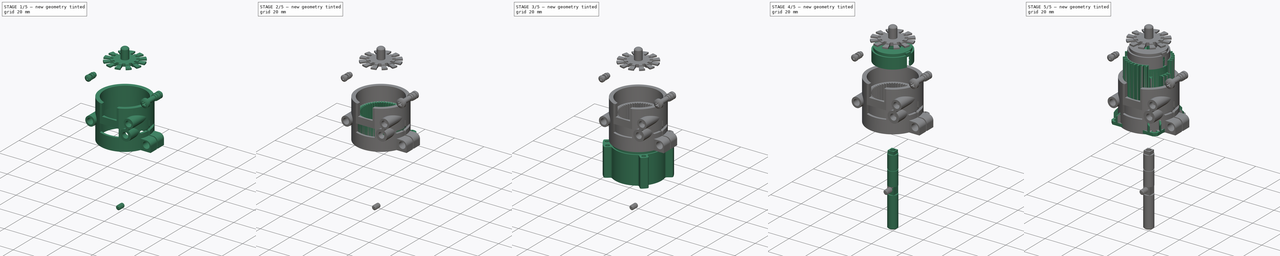
[diagram: build sequence overview — one tinted view per stage of 5, left to right]
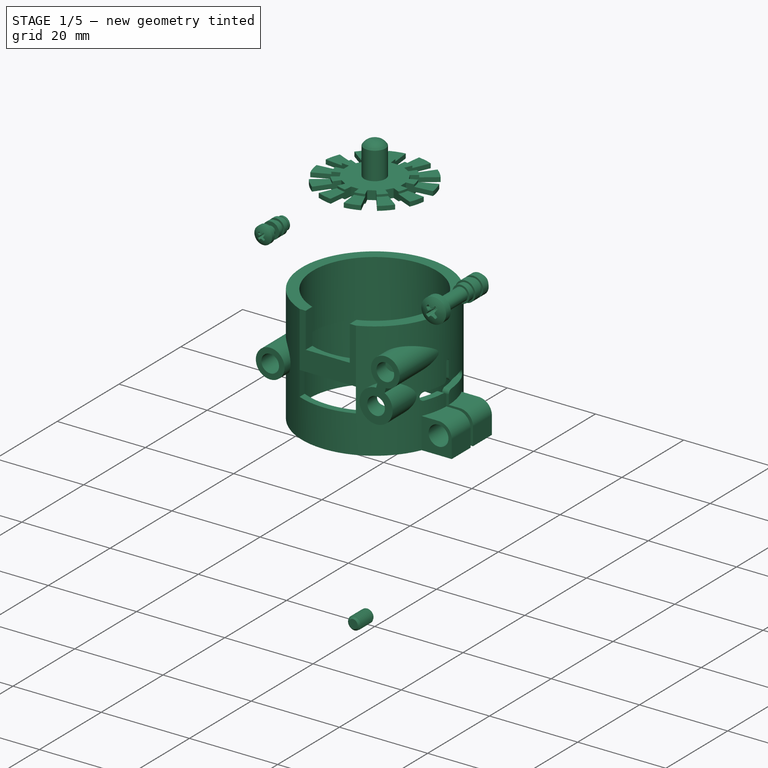
[diagram: stage 1 of 5 — iso view after this stage's code; geometry added in this stage tinted green]
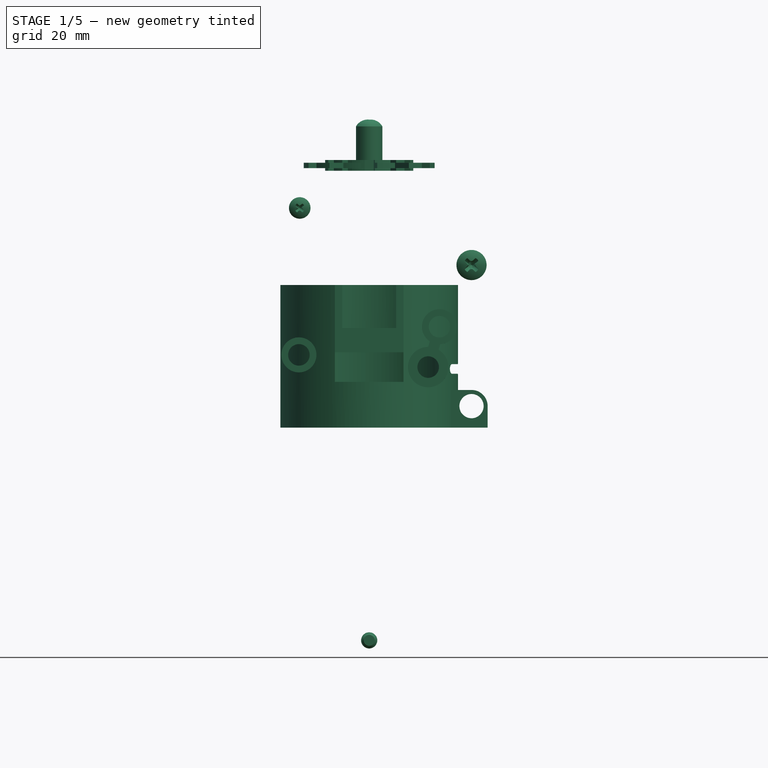
[diagram: stage 1 of 5 — front view after this stage's code; geometry added in this stage tinted green]
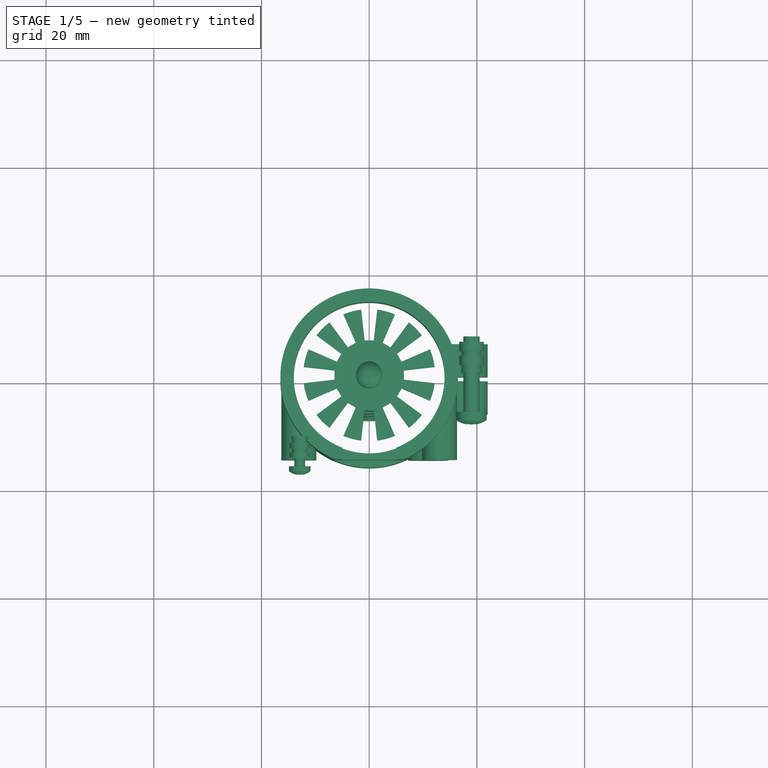
[diagram: stage 1 of 5 — top view after this stage's code; geometry added in this stage tinted green]
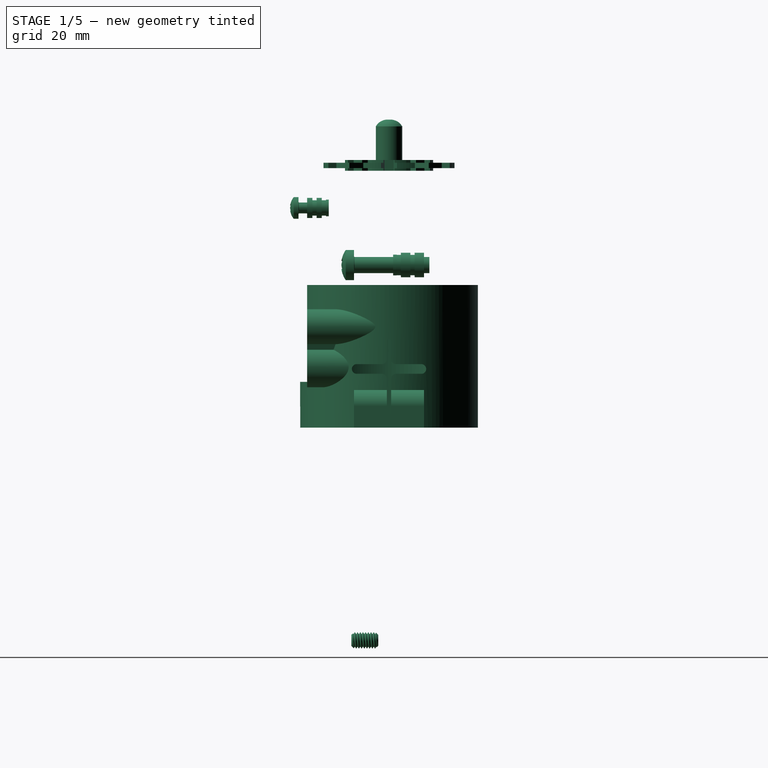
[diagram: stage 1 of 5 — right view after this stage's code; geometry added in this stage tinted green]
FCSTD DOCUMENT  (FreeCAD 0.20R29177 (Git))
Label: Motor_2342012CR
Comment: Time: 2 days (motor dissaembly & measurements included)
License: Creative Commons Attribution-NonCommercial-ShareAlike
LicenseURL: http://creativecommons.org/licenses/by-nc-sa/4.0/
objects: Sketcher::SketchObject×62, PartDesign::Pocket×28, PartDesign::Pad×27, PartDesign::Body×24, PartDesign::PolarPattern×13, App::LinkElement×11, App::Link×8, PartDesign::Revolution×7, PartDesign::ShapeBinder×7, PartDesign::Chamfer×7, App::DocumentObjectGroup×6, Part::FeaturePython×6, App::Part×5, PartDesign::FeaturePython×4, Part::Feature×4, PartDesign::Hole×2, PartDesign::Fillet×2, PartDesign::Groove×1, PartDesign::Boolean×1
note: 269 computed .brp shape members not serialized (recipe doc carries the construction recipe); baked Part::Feature solids carry a one-line shape summary decoded from their .brp

FEATURE [PartDesign::Body] Body009  label="Metal"
  Group = -> [ShapeBinder004,Pad010,Sketch024,Pocket008,Sketch025,Pad011,Fillet,Sketch026,Pad012,Sketch027,Pad013,Sketch028,Pocket009,Sketch029,Pocket010,PolarPattern005]
  Origin = -> Origin010
  Placement = pos=(0,0,0.4) rot=(0,0,1;0rad)
  Tip = -> PolarPattern005
FEATURE [PartDesign::ShapeBinder] ShapeBinder005
  Placement = pos=(0,0,0) rot=(1,0,0;1.5708rad)
  Support = -> [Sketch003]
  TraceSupport = false
FEATURE [Sketcher::SketchObject] Sketch030
  ExternalGeometry = -> [ShapeBinder005]
  FullyConstrained = true
  MapMode = 5
  Placement = pos=(0,0,0) rot=(1,0,0;1.5708rad)
  Support = -> [XZ_Plane011]
  sketch-geometry (13):
    g0: LineSegment StartX=-1 StartY=48.4071 StartZ=0 EndX=-1 EndY=53.7 EndZ=0
    g1: LineSegment StartX=-1 StartY=53.7 StartZ=0 EndX=0 EndY=53.7 EndZ=0
    g2: LineSegment StartX=0 StartY=53.7 StartZ=0 EndX=-1.345e-13 EndY=57.2 EndZ=0
    g3: LineSegment StartX=-1 StartY=48.4071 StartZ=0 EndX=-1.70711 EndY=47.7 EndZ=0
    g4: LineSegment StartX=-1.70711 StartY=47.7 StartZ=0 EndX=-8.25 EndY=47.7 EndZ=0
    g5: LineSegment StartX=-8.25 StartY=47.7 StartZ=0 EndX=-8.25 EndY=48.2 EndZ=0
    g6: LineSegment StartX=-8.25 StartY=48.2 StartZ=0 EndX=-12.25 EndY=48.2 EndZ=0
    g7: LineSegment StartX=-12.25 StartY=48.2 StartZ=0 EndX=-12.25 EndY=49.2 EndZ=0
    g8: LineSegment StartX=-12.25 StartY=49.2 StartZ=0 EndX=-8.25 EndY=49.2 EndZ=0
    g9: LineSegment StartX=-8.25 StartY=49.2 StartZ=0 EndX=-8.25 EndY=49.7 EndZ=0
    g10: LineSegment StartX=-8.25 StartY=49.7 StartZ=0 EndX=-2.45 EndY=49.7 EndZ=0
    g11: LineSegment StartX=-2.45 StartY=49.7 StartZ=0 EndX=-2.45 EndY=55.95 EndZ=0
    g12: ArcOfCircle CenterX=-0.276174 CenterY=54.7153 CenterZ=0 NormalX=0 NormalY=0 NormalZ=1 AngleXU=0 Radius=2.5 StartAngle=1.4601 EndAngle=2.62505
  constraints (39):
    c: Vertical(g0)
    c: Coincident(g0,g1)
    c: Horizontal(g1)
    c: Coincident(g1,g2)
    c: PointOnObject(g2,g-2)
    c: Coincident(g0,g3)
    c: Coincident(g3,g4)
    c: Horizontal(g4)
    c: Coincident(g4,g5)
    c: Vertical(g5)
    c: Coincident(g5,g6)
    c: Horizontal(g6)
    c: Coincident(g6,g7)
    c: Coincident(g7,g8)
    c: Horizontal(g8)
    c: Coincident(g8,g9)
    c: Coincident(g9,g10)
    c: Horizontal(g10)
    c: Coincident(g10,g11)
    c: Vertical(g11)
    c: Vertical(g9)
    c: DistanceY(g5,g5) = 0.5
    c: Equal(g5,g9)
    c: Vertical(g7)
    c: DistanceY(g7,g7) = 1
    c: DistanceX(g11) = -2.45
    c: DistanceX(g1,g1) = 1
    c: DistanceX(g7) = -12.25
    c: Angle(g3) = -2.35619
    c: Coincident(g12,g11)
    c: Coincident(g12,g2)
    c: DistanceY(g3,g2) = 9.5
    c: Vertical(g8,g5)
    c: DistanceX(g4) = -8.25
    c: DistanceY(g11,g2) = 1.25
    c: Coincident(g1,g-3)
    c: Distance(g3) = 1
    c: DistanceY(g3,g0) = 6
    c: Radius(g12) = 2.5
FEATURE [PartDesign::Revolution] Revolution004
  Angle = 360
  Axis = (0,2e-16,1)
  Base = (0,0,0)
  Placement = pos=(0,0,0) rot=(1,0,0;1.5708rad)
  Profile = -> Sketch030
  ReferenceAxis = -> Sketch030 [V_Axis]
FEATURE [Sketcher::SketchObject] Sketch031
  ExternalGeometry = -> [Revolution004]
  FullyConstrained = true
  MapMode = 5
  Placement = pos=(0,2.19e-14,49.7) rot=(0,0,1;3.14159rad)
  Support = -> [Revolution004]
  sketch-geometry (7):
    g0: LineSegment StartX=-0.85 StartY=6.45 StartZ=0 EndX=0.85 EndY=6.45 EndZ=0
    g1: LineSegment StartX=0.85 StartY=6.45 StartZ=0 EndX=1.5 EndY=12.25 EndZ=0
    g2: LineSegment StartX=1.5 StartY=12.25 StartZ=0 EndX=-1.5 EndY=12.25 EndZ=0
    g3: LineSegment StartX=-1.5 StartY=12.25 StartZ=0 EndX=-0.85 EndY=6.45 EndZ=0
    g4: GeomPoint X=-2.4e-15 Y=12.25 Z=0
    g5: GeomPoint X=0 Y=6.45 Z=0
    g6: GeomPoint X=-2.4e-15 Y=12.25 Z=0
  constraints (15):
    c: Coincident(g0,g1)
    c: Coincident(g1,g2)
    c: Coincident(g2,g3)
    c: Coincident(g3,g0)
    c: Horizontal(g2)
    c: Horizontal(g0)
    c: Equal(g3,g1)
    c: PointOnObject(g5,g-2)
    c: Symmetric(g1,g2,g4)
    c: Symmetric(g0,g0,g5)
    c: DistanceX(g0,g0) = 1.7
    c: DistanceY(g0,g1) = 5.8
    c: PointOnObject(g6,g-3)
    c: Coincident(g4,g6)
    c: DistanceX(g2,g2) = 3
FEATURE [PartDesign::Pocket] Pocket011
  BaseFeature = -> Revolution004
  Direction = (0,-2e-16,-1)
  Length = 2
  Length2 = 5
  Placement = pos=(0,0,0) rot=(1,0,0;1.5708rad)
  Profile = -> Sketch031
  ReferenceAxis = -> Sketch031 [N_Axis]
  Type = 0
FEATURE [PartDesign::PolarPattern] PolarPattern006
  Angle = 360
  Axis = -> Sketch031 [N_Axis]
  BaseFeature = -> Pocket011
  Occurrences = 12
  Originals = -> [Pocket011]
  Placement = pos=(0,0,0) rot=(1,0,0;1.5708rad)
FEATURE [PartDesign::Body] Body022  label="Collar"
  Group = -> [Sketch051,Pad023,Sketch052,Hole001,PolarPattern012]
  Origin = -> Origin023
  Placement = pos=(0,0,-43.5) rot=(0,0,1;0rad)
  Tip = -> PolarPattern012
FEATURE [App::DocumentObjectGroup] Group002  label="Output shaft"
  Group = -> [Body011,Body012,Body014,Link001,Body015,Body016,Body022]
FEATURE [Part::FeaturePython] ThreadedRod  label="M3x5-ThreadedRod"  # Fasteners workbench fastener (typed FeaturePython)
  Placement = pos=(0,-2,-39.5) rot=(0,0.707107,0.707107;3.14159rad)
  diameter = 4
  diameterCustom = 6
  invert = false
  leftHanded = false
  length = 5
  matchOuter = false
  offset = 0
  pitchCustom = 1
  thread = true
FEATURE [App::Link] Link005  label="M3x5-ThreadedRod001"
  LinkPlacement = pos=(7,3.97563e-06,-39.5) rot=(-0.57735,0.57735,-0.57735;2.0944rad)
  LinkedObject = -> ThreadedRod
  Placement = pos=(7,3.97563e-06,-39.5) rot=(-0.57735,0.57735,-0.57735;2.0944rad)
FEATURE [Sketcher::SketchObject] Sketch053
  FullyConstrained = true
  MapMode = 5
  Support = -> [XY_Plane024]
  sketch-geometry (2):
    g0: Circle CenterX=0 CenterY=0 CenterZ=0 NormalX=0 NormalY=0 NormalZ=1 AngleXU=0 Radius=14
    g1: Circle CenterX=0 CenterY=0 CenterZ=0 NormalX=0 NormalY=0 NormalZ=1 AngleXU=0 Radius=16.5
  constraints (4):
    c: Coincident(g0,g-1)
    c: Coincident(g1,g0)
    c: Diameter(g0) = 28
    c: Diameter(g1) = 33
FEATURE [PartDesign::Pad] Pad024
  Direction = (0,0,1)
  Length = 26.5
  Length2 = 10
  Profile = -> Sketch053
  ReferenceAxis = -> Sketch053 [N_Axis]
  Type = 0
FEATURE [Sketcher::SketchObject] Sketch054
  FullyConstrained = true
  MapMode = 5
  Placement = pos=(0,0,0) rot=(1,0,0;3.14159rad)
  Support = -> [Pad024]
  sketch-geometry (1):
    g0: Circle CenterX=0 CenterY=0 CenterZ=0 NormalX=0 NormalY=0 NormalZ=1 AngleXU=0 Radius=15
  constraints (2):
    c: Coincident(g0,g-1)
    c: Diameter(g0) = 30
FEATURE [PartDesign::Pocket] Pocket020
  BaseFeature = -> Pad024
  Direction = (0,0,1)
  Length = 14
  Length2 = 5
  Profile = -> Sketch054
  ReferenceAxis = -> Sketch054 [N_Axis]
  Type = 0
FEATURE [Sketcher::SketchObject] Sketch055
  ExternalGeometry = -> [Pocket020]
  FullyConstrained = true
  MapMode = 5
  Placement = pos=(0,0,0) rot=(1,0,0;1.5708rad)
  Support = -> [XZ_Plane024]
  sketch-geometry (10):
    g0: LineSegment StartX=-6.375 StartY=14 StartZ=0 EndX=-6.375 EndY=8.5 EndZ=0
    g1: LineSegment StartX=-6.375 StartY=8.5 StartZ=0 EndX=6.375 EndY=8.5 EndZ=0
    g2: LineSegment StartX=6.375 StartY=8.5 StartZ=0 EndX=6.375 EndY=14 EndZ=0
    g3: LineSegment StartX=6.375 StartY=14 StartZ=0 EndX=-6.375 EndY=14 EndZ=0
    g4: GeomPoint X=0 Y=11.25 Z=0
    g5: LineSegment StartX=5 StartY=18.5 StartZ=0 EndX=5 EndY=26.5 EndZ=0
    g6: LineSegment StartX=5 StartY=26.5 StartZ=0 EndX=-5 EndY=26.5 EndZ=0
    g7: LineSegment StartX=-5 StartY=26.5 StartZ=0 EndX=-5 EndY=18.5 EndZ=0
    g8: LineSegment StartX=-5 StartY=18.5 StartZ=0 EndX=5 EndY=18.5 EndZ=0
    g9: GeomPoint X=0 Y=22.5 Z=0
  constraints (26):
    c: Coincident(g0,g1)
    c: Coincident(g1,g2)
    c: Coincident(g2,g3)
    c: Coincident(g3,g0)
    c: Horizontal(g1)
    c: Horizontal(g3)
    c: Vertical(g0)
    c: Vertical(g2)
    c: Symmetric(g1,g0,g4)
    c: PointOnObject(g4,g-2)
    c: Coincident(g5,g6)
    c: Coincident(g6,g7)
    c: Coincident(g7,g8)
    c: Coincident(g8,g5)
    c: Horizontal(g6)
    c: Horizontal(g8)
    c: Vertical(g5)
    c: Vertical(g7)
    c: Symmetric(g6,g5,g9)
    c: PointOnObject(g9,g-2)
    c: PointOnObject(g6,g-3)
    c: DistanceX(g1,g1) = 12.75
    c: DistanceY(g2,g2) = 5.5
    c: DistanceY(g2,g5) = 4.5
    c: DistanceY(g5,g5) = 8
    c: DistanceX(g6,g6) = 10
FEATURE [PartDesign::Pocket] Pocket021
  BaseFeature = -> Pocket020
  Direction = (0,1,2e-16)
  Length = 20
  Length2 = 5
  Profile = -> Sketch055
  ReferenceAxis = -> Sketch055 [N_Axis]
  Reversed = true
  Type = 0
FEATURE [Sketcher::SketchObject] Sketch056
  ExternalGeometry = -> [Pocket021]
  FullyConstrained = true
  MapMode = 5
  Placement = pos=(0,-3.1e-15,14) rot=(1,0,0;3.14159rad)
  Support = -> [Pocket021]
  sketch-geometry (4):
    g0: LineSegment StartX=-6.375 StartY=15.2187 StartZ=0 EndX=6.375 EndY=15.2187 EndZ=0
    g1: LineSegment StartX=6.375 StartY=15.2187 StartZ=0 EndX=6.375 EndY=16.7187 EndZ=0
    g2: LineSegment StartX=6.375 StartY=16.7187 StartZ=0 EndX=-6.375 EndY=16.7187 EndZ=0
    g3: LineSegment StartX=-6.375 StartY=16.7187 StartZ=0 EndX=-6.375 EndY=15.2187 EndZ=0
  constraints (10):
    c: Coincident(g0,g1)
    c: Coincident(g1,g2)
    c: Coincident(g2,g3)
    c: Coincident(g3,g0)
    c: Horizontal(g2)
    c: Vertical(g1)
    c: Vertical(g3)
    c: Coincident(g0,g-4)
    c: Coincident(g-3,g0)
    c: DistanceY(g1,g1) = 1.5
FEATURE [PartDesign::Pocket] Pocket022
  BaseFeature = -> Pocket021
  Direction = (0,-2e-16,1)
  Length = 15
  Length2 = 5
  Profile = -> Sketch056
  ReferenceAxis = -> Sketch056 [N_Axis]
  Type = 0
FEATURE [Sketcher::SketchObject] Sketch058
  FullyConstrained = false
  MapMode = 5
  Placement = pos=(0,0,26.5) rot=(0,0,1;0rad)
  sketch-geometry (1):
    g0: Circle CenterX=0 CenterY=0 CenterZ=0 NormalX=0 NormalY=0 NormalZ=1 AngleXU=0 Radius=14
  constraints (1):
    c: Coincident(g0,g-1)
FEATURE [Sketcher::SketchObject] Sketch060
  FullyConstrained = false
  MapMode = 5
  Placement = pos=(0,0,0) rot=(1,0,0;3.14159rad)
  sketch-geometry (1):
    g0: Circle CenterX=0 CenterY=0 CenterZ=0 NormalX=0 NormalY=0 NormalZ=1 AngleXU=0 Radius=15
  constraints (1):
    c: Coincident(g0,g-1)
FEATURE [Sketcher::SketchObject] Sketch061
  FullyConstrained = false
  MapMode = 5
  Placement = pos=(24,-3e-15,6e-15) rot=(0.57735,0.57735,0.57735;2.0944rad)
  sketch-geometry (17):
    g0: ArcOfCircle CenterX=-6 CenterY=10.9 CenterZ=0 NormalX=0 NormalY=0 NormalZ=1 AngleXU=0 Radius=0.9 StartAngle=1.5708 EndAngle=4.7124
    g1: ArcOfCircle CenterX=6 CenterY=10.9 CenterZ=0 NormalX=0 NormalY=0 NormalZ=1 AngleXU=0 Radius=0.9 StartAngle=4.71239 EndAngle=7.85398
    g2: ArcOfCircle CenterX=0 CenterY=16.1 CenterZ=0 NormalX=0 NormalY=0 NormalZ=1 AngleXU=0 Radius=0.4 StartAngle=2e-15 EndAngle=3.14159
    g3: ArcOfCircle CenterX=-1.3 CenterY=12.7 CenterZ=0 NormalX=0 NormalY=0 NormalZ=1 AngleXU=0 Radius=0.9 StartAngle=4.71239 EndAngle=6.28319
    g4: ArcOfCircle CenterX=1.3 CenterY=12.7 CenterZ=0 NormalX=0 NormalY=0 NormalZ=1 AngleXU=0 Radius=0.9 StartAngle=3.14159 EndAngle=4.71239
    g5: ArcOfCircle CenterX=-1.3 CenterY=9.1 CenterZ=0 NormalX=0 NormalY=0 NormalZ=1 AngleXU=0 Radius=0.9 StartAngle=3e-16 EndAngle=1.5708
    g6: ArcOfCircle CenterX=1.3 CenterY=9.1 CenterZ=0 NormalX=0 NormalY=0 NormalZ=1 AngleXU=0 Radius=0.9 StartAngle=1.5708 EndAngle=3.14159
    g7: LineSegment StartX=-0.4 StartY=12.7 StartZ=0 EndX=-0.4 EndY=16.1 EndZ=0
    g8: LineSegment StartX=0.4 StartY=12.7 StartZ=0 EndX=0.4 EndY=16.1 EndZ=0
    g9: LineSegment StartX=-1.3 StartY=11.8 StartZ=0 EndX=-6 EndY=11.8 EndZ=0
    g10: LineSegment StartX=1.3 StartY=11.8 StartZ=0 EndX=6 EndY=11.8 EndZ=0
    g11: LineSegment StartX=6 StartY=10 StartZ=0 EndX=1.3 EndY=10 EndZ=0
    g12: LineSegment StartX=-5.99999 StartY=10 StartZ=0 EndX=-1.3 EndY=10 EndZ=0
    g13: LineSegment StartX=-0.4 StartY=9.1 StartZ=0 EndX=-0.4 EndY=0 EndZ=0
    g14: LineSegment StartX=0.4 StartY=9.1 StartZ=0 EndX=0.4 EndY=0 EndZ=0
    g15: LineSegment StartX=-0.4 StartY=0 StartZ=0 EndX=0.4 EndY=0 EndZ=0
    g16: GeomPoint X=0 Y=16.5 Z=0
  constraints (42):
    c: PointOnObject(g2,g-2)
    c: Horizontal(g9)
    c: Coincident(g0,g12)
    c: Horizontal(g12)
    c: Horizontal(g10)
    c: Horizontal(g11)
    c: Vertical(g8)
    c: Vertical(g7)
    c: Equal(g0,g1)
    c: Equal(g5,g3)
    c: Equal(g3,g4)
    c: Equal(g4,g6)
    c: Horizontal(g4,g3)
    c: Horizontal(g6,g5)
    c: Vertical(g6,g4)
    c: Tangent(g7,g3) = -1.5708
    c: Tangent(g8,g4) = 1.5708
    c: Tangent(g10,g4) = -1.5708
    c: Tangent(g6,g11) = -1.5708
    c: Tangent(g12,g5) = 1.5708
    c: Tangent(g9,g3) = 1.5708
    c: Vertical(g13)
    c: Coincident(g15,g13)
    c: Coincident(g15,g14)
    c: Horizontal(g15)
    c: Vertical(g14)
    c: Symmetric(g14,g13,g-1)
    c: Tangent(g13,g5) = 1.5708
    c: Tangent(g14,g6) = -1.5708
    c: Equal(g9,g10)
    c: Tangent(g8,g2) = -1.5708
    c: Tangent(g7,g2) = 1.5708
    c: Tangent(g10,g1) = 1.5708
    c: Tangent(g11,g1) = 1.5708
    c: Tangent(g9,g0) = -1.5708
    c: Radius(g2) = 0.4
    c: Radius(g1) = 0.9
    c: PointOnObject(g16,g2)
    c: PointOnObject(g16,g-2)
    c: DistanceY(g16) = 16.5
    c: Equal(g5,g1)
    c: DistanceX(g0,g1) = 12
FEATURE [Sketcher::SketchObject] Sketch063
  ExternalGeometry = -> [Pocket022]
  FullyConstrained = true
  MapMode = 5
  Placement = pos=(0,-15.2187,-3.3e-15) rot=(1,0,0;1.5708rad)
  Support = -> [Pocket022]
  sketch-geometry (18):
    g0: Circle CenterX=-13.05 CenterY=13.518 CenterZ=0 NormalX=0 NormalY=0 NormalZ=1 AngleXU=0 Radius=3.25
    g1: Circle CenterX=-13.05 CenterY=13.518 CenterZ=0 NormalX=0 NormalY=0 NormalZ=1 AngleXU=0 Radius=2
    g2: ArcOfCircle CenterX=13.05 CenterY=18.75 CenterZ=0 NormalX=0 NormalY=0 NormalZ=1 AngleXU=0 Radius=3.25 StartAngle=4.75215 EndAngle=10.4098
    g3: Circle CenterX=13.05 CenterY=18.75 CenterZ=0 NormalX=0 NormalY=0 NormalZ=1 AngleXU=0 Radius=2
    g4: ArcOfCircle CenterX=10.95 CenterY=11.25 CenterZ=0 NormalX=0 NormalY=0 NormalZ=1 AngleXU=0 Radius=3.75 StartAngle=1.56772 EndAngle=7.31104
    g5: Circle CenterX=10.95 CenterY=11.25 CenterZ=0 NormalX=0 NormalY=0 NormalZ=1 AngleXU=0 Radius=2
    g6: LineSegment StartX=10.95 StartY=11.25 StartZ=0 EndX=13.05 EndY=18.75 EndZ=0
    g7: LineSegment StartX=10.9615 StartY=15 StartZ=0 EndX=11.2533 EndY=16.0418 EndZ=0
    g8: LineSegment StartX=12.8875 StartY=14.4607 StartZ=0 EndX=13.1792 EndY=15.5026 EndZ=0
    g9: GeomPoint X=-16.3 Y=13.518 Z=0
    g10: GeomPoint X=13.05 Y=22 Z=0
    g11: GeomPoint X=16.3 Y=18.75 Z=0
    g12: GeomPoint X=10.95 Y=7.5 Z=0
    g13: GeomPoint X=-16.5 Y=13.25 Z=0
    g14: GeomPoint X=16.5 Y=13.25 Z=0
    g15: GeomPoint X=9e-16 Y=13.25 Z=0
    g16: GeomPoint X=-9.8 Y=13.518 Z=0
    g17: GeomPoint X=7.2 Y=11.25 Z=0
  constraints (42):
    c: Coincident(g1,g0)
    c: Coincident(g3,g2)
    c: Coincident(g5,g4)
    c: Coincident(g6,g4)
    c: Coincident(g6,g2)
    c: Equal(g8,g7)
    c: Distance(g8,g6) = 1
    c: Distance(g7,g6) = 1
    c: Parallel(g7,g6)
    c: Coincident(g4,g8)
    c: Coincident(g4,g7)
    c: Coincident(g2,g7)
    c: Coincident(g2,g8)
    c: Equal(g1,g5)
    c: Equal(g5,g3)
    c: Diameter(g3) = 4
    c: Diameter(g0) = 6.5
    c: Diameter(g4) = 7.5
    c: Equal(g2,g0)
    c: DistanceX(g0,g2) = 26.1
    c: DistanceY(g0,g2) = 5.232
    c: PointOnObject(g9,g0)
    c: Horizontal(g9,g0)
    c: PointOnObject(g10,g2)
    c: PointOnObject(g11,g2)
    c: PointOnObject(g12,g4)
    c: Vertical(g12,g4)
    c: Vertical(g2,g10)
    c: Horizontal(g11,g2)
    c: DistanceX(g9,g11) = 32.6
    c: Symmetric(g-4,g-5,g13)
    c: PointOnObject(g14,g-3)
    c: Symmetric(g14,g13,g15)
    c: Horizontal(g15,g14)
    c: DistanceY(g12,g10) = 14.5
    c: DistanceX(g9,g15) = 16.3
    c: DistanceY(g10,g-4) = 4.5
    c: PointOnObject(g16,g0)
    c: PointOnObject(g17,g4)
    c: Horizontal(g16,g0)
    c: Horizontal(g17,g4)
    c: DistanceX(g16,g17) = 17
FEATURE [PartDesign::Pad] Pad025
  BaseFeature = -> Pocket022
  Direction = (0,-1,-2e-16)
  Length = 15
  Length2 = 10
  Profile = -> Sketch063
  ReferenceAxis = -> Sketch063 [N_Axis]
  Reversed = true
  Type = 0
FEATURE [Sketcher::SketchObject] Sketch064
  AttachmentOffset = pos=(0,0,22) rot=(0,0,1;0rad)
  FullyConstrained = true
  MapMode = 5
  Placement = pos=(22,-4.9e-15,4.9e-15) rot=(0.57735,0.57735,0.57735;2.0944rad)
  Support = -> [YZ_Plane024]
  sketch-geometry (4):
    g0: LineSegment StartX=6.5 StartY=0 StartZ=0 EndX=-6.5 EndY=0 EndZ=0
    g1: LineSegment StartX=-6.5 StartY=0 StartZ=0 EndX=-6.5 EndY=7 EndZ=0
    g2: LineSegment StartX=-6.5 StartY=7 StartZ=0 EndX=6.5 EndY=7 EndZ=0
    g3: LineSegment StartX=6.5 StartY=7 StartZ=0 EndX=6.5 EndY=0 EndZ=0
  constraints (11):
    c: Coincident(g0,g1)
    c: Coincident(g1,g2)
    c: Coincident(g2,g3)
    c: Coincident(g3,g0)
    c: Horizontal(g0)
    c: Horizontal(g2)
    c: Vertical(g1)
    c: Vertical(g3)
    c: DistanceX(g2,g2) = 13
    c: DistanceY(g3,g3) = 7
    c: Symmetric(g0,g0,g-1)
FEATURE [PartDesign::Pad] Pad026
  BaseFeature = -> Pad025
  Direction = (1,-2e-16,3e-16)
  Length = 8
  Length2 = 10
  Profile = -> Sketch064
  ReferenceAxis = -> Sketch064 [N_Axis]
  Reversed = true
  Type = 0
FEATURE [PartDesign::Fillet] Fillet001
  Base = -> Pad026 [Edge16]
  BaseFeature = -> Pad026
  Radius = 3
  SupportTransform = false
  UseAllEdges = false
FEATURE [Sketcher::SketchObject] Sketch062
  ExternalGeometry = -> [Fillet001]
  FullyConstrained = true
  MapMode = 5
  Placement = pos=(-1e-15,-6.5,1e-15) rot=(1,0,0;1.5708rad)
  sketch-geometry (1):
    g0: Circle CenterX=19 CenterY=4 CenterZ=0 NormalX=0 NormalY=0 NormalZ=1 AngleXU=0 Radius=2.25
  constraints (2):
    c: Radius(g0) = 2.25
    c: Coincident(g0,g-3)
FEATURE [PartDesign::Pocket] Pocket023
  BaseFeature = -> Fillet001
  Direction = (0,1,-2e-16)
  Length = 13
  Length2 = 5
  Profile = -> Sketch062
  ReferenceAxis = -> Sketch062 [N_Axis]
  Type = 0
FEATURE [PartDesign::Pocket] Pocket024
  BaseFeature = -> Pocket023
  Direction = (-1,0,0)
  Length = 15
  Length2 = 5
  Profile = -> Sketch061
  ReferenceAxis = -> Sketch061 [N_Axis]
  Type = 0
FEATURE [PartDesign::Pocket] Pocket026
  BaseFeature = -> Pocket024
  Direction = (0,0,-1)
  Length = 40
  Length2 = 5
  Profile = -> Sketch058
  ReferenceAxis = -> Sketch058 [N_Axis]
  Type = 0
FEATURE [PartDesign::Pocket] Pocket027
  BaseFeature = -> Pocket026
  Direction = (0,0,1)
  Length = 14
  Length2 = 5
  Profile = -> Sketch060
  ReferenceAxis = -> Sketch060 [N_Axis]
  Type = 0
FEATURE [Part::FeaturePython] HeatSet  label="M2-HeatSet"  # WARN: FeaturePython — macro-defined, semantics opaque (R4)
  Placement = pos=(-12.9,-15.2,40.8) rot=(1,0,0;1.5708rad)
  diameter = 1
  invert = false
  leftHanded = false
  offset = 0
FEATURE [App::Link] Link006  label="M2-HeatSet001"
  LinkPlacement = pos=(12.9,-15.2,46.06) rot=(1,0,0;1.5708rad)
  LinkedObject = -> HeatSet
  Placement = pos=(12.9,-15.2,46.06) rot=(1,0,0;1.5708rad)
FEATURE [Part::FeaturePython] HeatSet001  label="M3-HeatSet"  # WARN: FeaturePython — macro-defined, semantics opaque (R4)
  Placement = pos=(19,6.5,30.2) rot=(-1,0,0;1.5708rad)
  diameter = 3
  invert = false
  leftHanded = false
  offset = 0
FEATURE [Part::FeaturePython] Screw001  label="M3x14-Screw"  # Fasteners workbench fastener (typed FeaturePython)
  Placement = pos=(19,-6.5,30.2) rot=(1,0,0;1.5708rad)
  diameter = 4
  invert = false
  leftHanded = false
  length = 6
  lengthCustom = 14
  matchOuter = false
  offset = 0
  thread = false
  type = 35
FEATURE [Part::FeaturePython] Screw002  label="M2x4-Screw"  # Fasteners workbench fastener (typed FeaturePython)
  Placement = pos=(-12.9,-16.8,40.8) rot=(1,0,0;1.5708rad)
  diameter = 2
  invert = false
  leftHanded = false
  length = 1
  lengthCustom = 4
  matchOuter = false
  offset = 0
  thread = false
  type = 35
FEATURE [App::Link] Link007  label="M2x4-Screw001"
  LinkPlacement = pos=(12.9,-16.8,46) rot=(1,0,0;1.5708rad)
  LinkedObject = -> Screw002
  Placement = pos=(12.9,-16.8,46) rot=(1,0,0;1.5708rad)
FEATURE [App::DocumentObjectGroup] Group003  label="Fasteners"
  Group = -> [Link003,Body021,Screw,Link004,ThreadedRod,Link005,HeatSet,Link006,HeatSet001,Screw001,Screw002,Link007]
FEATURE [Part::Feature] Part__Feature  label="SOLID"
  shape: bbox 4.9 x 8.3 x 2.6 mm, 80 faces (baked)
FEATURE [App::Part] EE_SX1105
  Group = -> [Part__Feature]
  Origin = -> Origin025
  Placement = pos=(133.604,-101.854,1.65) rot=(0.57735,0.57735,0.57735;2.0944rad)
FEATURE [Part::Feature] Part__Feature001  label="COMPOUND"
  shape: bbox 3.806 x 2.951 x 40.4 mm, 64 faces, 2 solids (baked)
FEATURE [App::Part] NTC_thermistor_blue  label="NTC thermistor_blue"
  Group = -> [Part__Feature001]
  Origin = -> Origin026
  Placement = pos=(141.1,-87.9352,1.65) rot=(0,0,1;0rad)
FEATURE [Part::Feature] Part__Feature002  label="SOLID001"
  shape: bbox 4.9 x 8.3 x 2.6 mm, 80 faces (baked)
FEATURE [App::Part] EE_SX1105001
  Group = -> [Part__Feature002]
  Origin = -> Origin027
  Placement = pos=(129.584,-101.854,1.65) rot=(0.57735,0.57735,0.57735;2.0944rad)
FEATURE [Part::Feature] Part__Feature003  label="Encoder PCB"
  shape: bbox 33.02 x 17.78 x 1.6 mm, 28 faces (baked)
FEATURE [App::Part] Encoder_1  label="PCB"
  Group = -> [EE_SX1105,NTC_thermistor_blue,EE_SX1105001,Part__Feature003]
  Origin = -> Origin028
  Placement = pos=(-130.9,-16.8,-51.1) rot=(1,0,0;4.71239rad)
FEATURE [PartDesign::Pocket] Pocket028
  BaseFeature = -> Pocket027
  Direction = (3e-16,-1,-5e-16)
  Length = 15
  Length2 = 5
  Profile = -> Pocket027 [Edge200]
  Reversed = true
  Type = 0
FEATURE [PartDesign::Body] Body023  label="PCB support"
  Group = -> [Sketch053,Pad024,Sketch054,Pocket020,Sketch055,Pocket021,Sketch056,Pocket022,Sketch058,Sketch060,Sketch061,Sketch062,Sketch063,Pad025,Sketch064,Pad026,Fillet001,Pocket023,Pocket024,Pocket026,Pocket027,Pocket028]
  Origin = -> Origin024
  Placement = pos=(0,0,26.2) rot=(0,0,1;0rad)
  Tip = -> Pocket028
FEATURE [App::DocumentObjectGroup] Group005  label="Encoder"
  Group = -> [Body010,Body023,Encoder_1]
FEATURE [App::Part] Part  label="FAULHABER 2342L-012CPR"
  Group = -> [Body,Body004,Body001,Body002,Body005,Body003,Group,Body006,Group001,Body007,Body008,Body009,Body011,Group002,Body012,Body014,Link001,Body015,Body016,Body017,Body018,Link002,Body019,Group003,Link003,Body021,Screw,Link004,Group004,Body022,ThreadedRod,Link005,Body013,Link,Body010,Group005,Body023,HeatSet,Link006,HeatSet001,Screw001,Screw002,Link007,Encoder_1]
  Origin = -> Origin
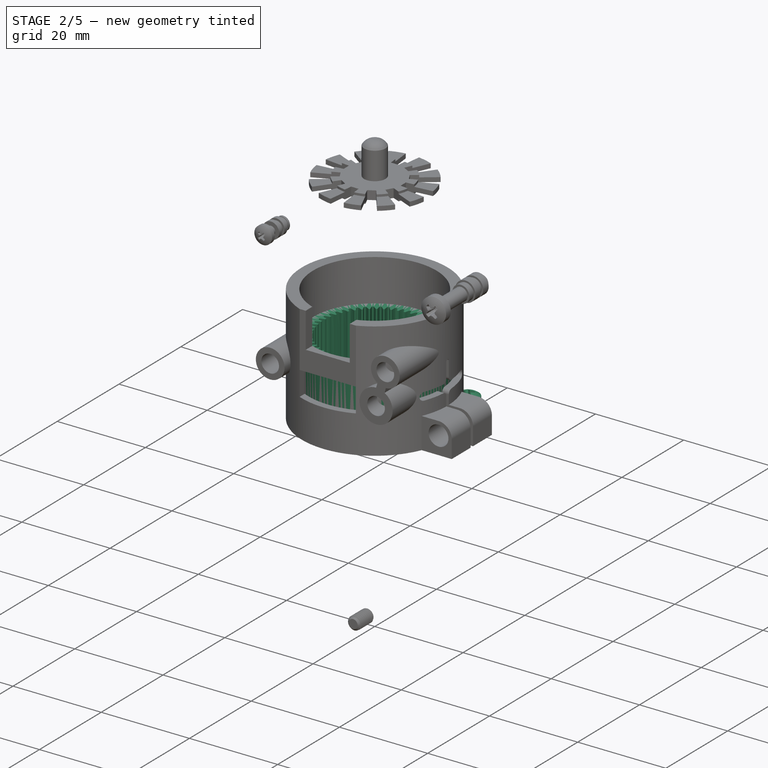
[diagram: stage 2 of 5 — iso view after this stage's code; geometry added in this stage tinted green]
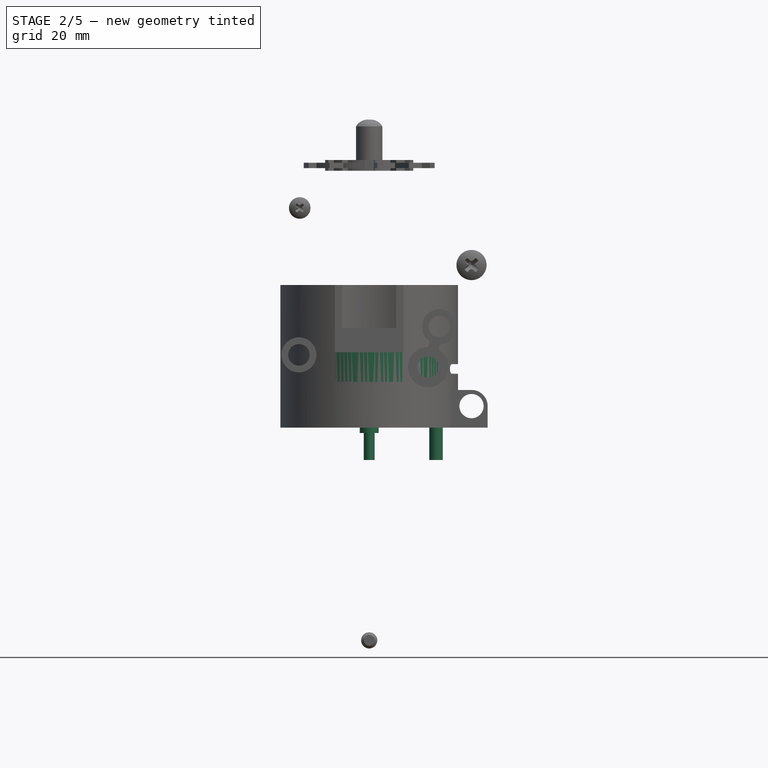
[diagram: stage 2 of 5 — front view after this stage's code; geometry added in this stage tinted green]
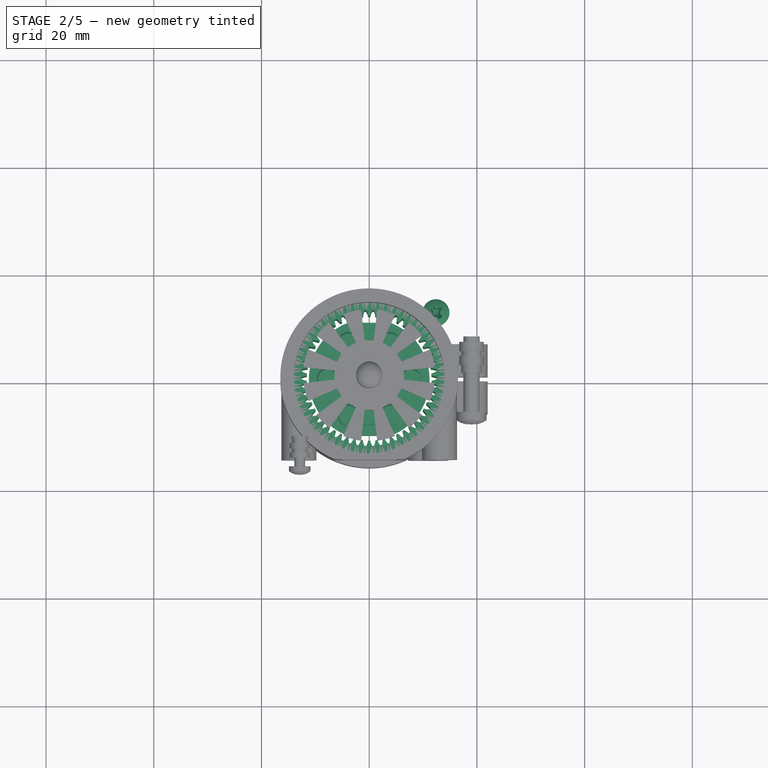
[diagram: stage 2 of 5 — top view after this stage's code; geometry added in this stage tinted green]
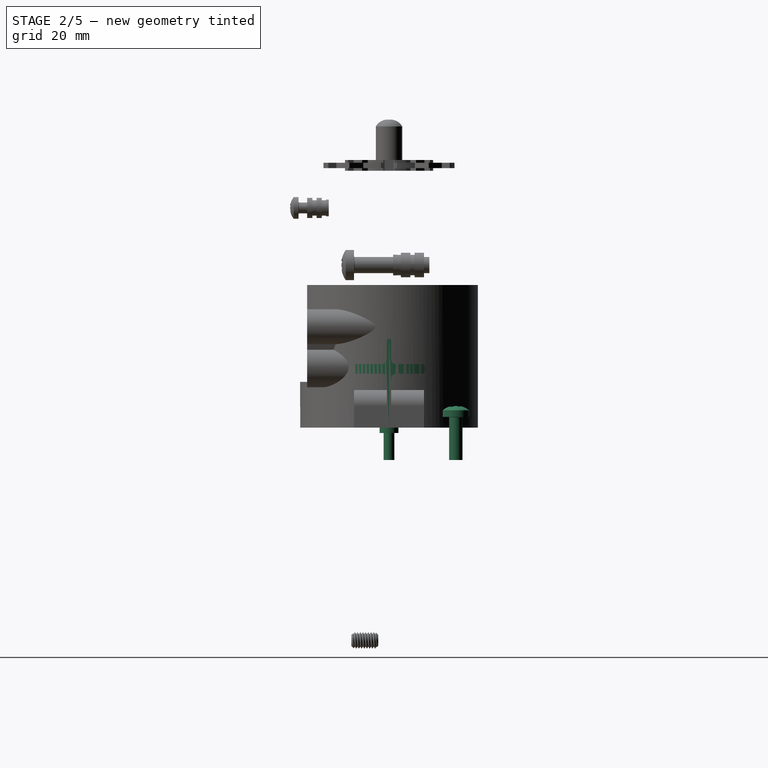
[diagram: stage 2 of 5 — right view after this stage's code; geometry added in this stage tinted green]
FEATURE [PartDesign::FeaturePython] involutegear001  # WARN: FeaturePython — macro-defined, semantics opaque (R4)
  AttacherType = Attacher::AttachEngine3D
  backlash = 0
  beta = 0
  clearance = 0.25
  da = 9
  df = 6.975
  double_helix = false
  dw = 8.1
  head = 0
  height = 3
  module = 0.45
  numpoints = 6
  pressure_angle = 20
  properties_from_tool = false
  reversed_backlash = false
  shift = 0
  simple = false
  teeth = 18
  transverse_pitch = 1.41372
  undercut = false
  version = 0.0.3
FEATURE [Sketcher::SketchObject] Sketch038
  FullyConstrained = true
  MapMode = 5
  Placement = pos=(0,0,3) rot=(0,0,1;0rad)
  Support = -> [involutegear001]
  sketch-geometry (1):
    g0: Circle CenterX=0 CenterY=0 CenterZ=0 NormalX=0 NormalY=0 NormalZ=1 AngleXU=0 Radius=2
  constraints (2):
    c: Coincident(g0,g-1)
    c: Diameter(g0) = 4
FEATURE [PartDesign::Pocket] Pocket015
  BaseFeature = -> involutegear001
  Direction = (0,0,-1)
  Length = 1
  Length2 = 5
  Profile = -> Sketch038
  ReferenceAxis = -> Sketch038 [N_Axis]
  Type = 2
FEATURE [PartDesign::Body] Body012  label="Circle"
  Group = -> [Sketch036,Pad014,Sketch037,Pad015,Chamfer004,PolarPattern007,Sketch043,Pocket016,PolarPattern008]
  Origin = -> Origin013
  Placement = pos=(0,0,-18.45) rot=(0,0,1;0rad)
  Tip = -> PolarPattern008
FEATURE [PartDesign::FeaturePython] involutegear002  # WARN: FeaturePython — macro-defined, semantics opaque (R4)
  AttacherType = Attacher::AttachEngine3D
  backlash = 0
  beta = 0
  clearance = 0.25
  da = 9
  df = 6.975
  double_helix = false
  dw = 8.1
  head = 0
  height = 3
  module = 0.45
  numpoints = 6
  pressure_angle = 20
  properties_from_tool = false
  reversed_backlash = false
  shift = 0
  simple = false
  teeth = 18
  transverse_pitch = 1.41372
  undercut = false
  version = 0.0.3
FEATURE [Sketcher::SketchObject] Sketch044
  FullyConstrained = true
  MapMode = 5
  Placement = pos=(0,0,3) rot=(0,0,1;0rad)
  Support = -> [involutegear002]
  sketch-geometry (4):
    g0: ArcOfCircle CenterX=0 CenterY=0 CenterZ=0 NormalX=0 NormalY=0 NormalZ=1 AngleXU=0 Radius=11.2 StartAngle=1.92622 EndAngle=4.35697
    g1: LineSegment StartX=-3.89744 StartY=10.5 StartZ=0 EndX=3.89744 EndY=10.5 EndZ=0
    g2: LineSegment StartX=3.89744 StartY=-10.5 StartZ=0 EndX=-3.89744 EndY=-10.5 EndZ=0
    g3: ArcOfCircle CenterX=0 CenterY=0 CenterZ=0 NormalX=0 NormalY=0 NormalZ=1 AngleXU=0 Radius=11.2 StartAngle=5.06781 EndAngle=7.49856
  constraints (12):
    c: Coincident(g0,g-1)
    c: Diameter(g0) = 22.4
    c: Horizontal(g1)
    c: Horizontal(g2)
    c: Equal(g2,g1)
    c: DistanceY(g2,g1) = 21
    c: Coincident(g3,g1)
    c: Coincident(g0,g1)
    c: Equal(g0,g3)
    c: Coincident(g0,g2)
    c: Coincident(g3,g2)
    c: Coincident(g0,g3)
FEATURE [PartDesign::Pad] Pad020
  BaseFeature = -> involutegear002
  Direction = (0,0,1)
  Length = 2
  Length2 = 10
  Profile = -> Sketch044
  ReferenceAxis = -> Sketch044 [N_Axis]
  Type = 0
FEATURE [Sketcher::SketchObject] Sketch045
  FullyConstrained = true
  MapMode = 5
  Placement = pos=(0,0,5) rot=(0,0,1;0rad)
  Support = -> [Pad020]
  sketch-geometry (1):
    g0: Circle CenterX=7.75 CenterY=0 CenterZ=0 NormalX=0 NormalY=0 NormalZ=1 AngleXU=0 Radius=2
  constraints (3):
    c: PointOnObject(g0,g-1)
    c: Diameter(g0) = 4
    c: DistanceX(g0) = 7.75
FEATURE [PartDesign::Pad] Pad021
  BaseFeature = -> Pad020
  Direction = (0,0,1)
  Length = 3
  Length2 = 10
  Profile = -> Sketch045
  ReferenceAxis = -> Sketch045 [N_Axis]
  Type = 0
FEATURE [PartDesign::Chamfer] Chamfer006
  Angle = 45
  Base = -> Pad021 [Edge339]
  BaseFeature = -> Pad021
  ChamferType = 0
  FlipDirection = false
  Size = 0.25
  Size2 = 1
  SupportTransform = false
  UseAllEdges = false
FEATURE [PartDesign::PolarPattern] PolarPattern009
  Angle = 360
  Axis = -> Z_Axis019
  BaseFeature = -> Chamfer006
  Occurrences = 6
  Originals = -> [Pad021,Chamfer006]
FEATURE [Sketcher::SketchObject] Sketch046
  ExternalGeometry = -> [PolarPattern009]
  FullyConstrained = true
  MapMode = 5
  Placement = pos=(0,0,8) rot=(0,0,1;0rad)
  Support = -> [PolarPattern009]
  sketch-geometry (1):
    g0: Circle CenterX=7.75 CenterY=0 CenterZ=0 NormalX=0 NormalY=0 NormalZ=1 AngleXU=0 Radius=0.625
  constraints (2):
    c: Coincident(g0,g-3)
    c: Diameter(g0) = 1.25
FEATURE [PartDesign::Pocket] Pocket017
  BaseFeature = -> PolarPattern009
  Direction = (0,0,-1)
  Length = 0.1
  Length2 = 5
  Profile = -> Sketch046
  ReferenceAxis = -> Sketch046 [N_Axis]
  Type = 0
FEATURE [PartDesign::PolarPattern] PolarPattern010
  Angle = 360
  Axis = -> Sketch046 [N_Axis]
  BaseFeature = -> Pocket017
  Occurrences = 3
  Originals = -> [Pocket017]
FEATURE [Sketcher::SketchObject] Sketch047
  FullyConstrained = true
  MapMode = 5
  Placement = pos=(0,0,3) rot=(1,0,0;3.14159rad)
  Support = -> [PolarPattern010]
  sketch-geometry (1):
    g0: Circle CenterX=7.75 CenterY=0 CenterZ=0 NormalX=0 NormalY=0 NormalZ=1 AngleXU=0 Radius=2
  constraints (3):
    c: PointOnObject(g0,g-1)
    c: Diameter(g0) = 4
    c: DistanceX(g0) = 7.75
FEATURE [PartDesign::Pocket] Pocket018
  BaseFeature = -> PolarPattern010
  Direction = (0,0,1)
  Length = 0.2
  Length2 = 5
  Profile = -> Sketch047
  ReferenceAxis = -> Sketch047 [N_Axis]
  Type = 0
FEATURE [PartDesign::Body] Body018  label="Plastic gear"
  Group = -> [involutegear002,Sketch044,Pad020,Sketch045,Pad021,Chamfer006,PolarPattern009,Sketch046,Pocket017,PolarPattern010,Sketch047,Pocket018,PolarPattern011]
  Origin = -> Origin019
  Placement = pos=(0,0,-16.4) rot=(0,0,1;0rad)
  Tip = -> PolarPattern011
FEATURE [App::Link] Link002  label="Plastic gear001"
  LinkPlacement = pos=(0,0,-11.4) rot=(0,0,1;0rad)
  LinkedObject = -> Body018
  Placement = pos=(0,0,-11.4) rot=(0,0,1;0rad)
FEATURE [Sketcher::SketchObject] Sketch048
  FullyConstrained = true
  MapMode = 5
  Support = -> [XY_Plane020]
  sketch-geometry (1):
    g0: Circle CenterX=0 CenterY=0 CenterZ=0 NormalX=0 NormalY=0 NormalZ=1 AngleXU=0 Radius=15
  constraints (2):
    c: Coincident(g0,g-1)
    c: Diameter(g0) = 30
FEATURE [PartDesign::Pad] Pad022
  Direction = (0,0,1)
  Length = 17
  Length2 = 10
  Profile = -> Sketch048
  ReferenceAxis = -> Sketch048 [N_Axis]
  Type = 0
FEATURE [PartDesign::FeaturePython] involutegear003  # WARN: FeaturePython — macro-defined, semantics opaque (R4)
  AttacherType = Attacher::AttachEngine3D
  backlash = 0
  beta = 0
  clearance = 0.25
  da = 25.2
  df = 23.175
  double_helix = false
  dw = 24.3
  head = 0
  height = 20
  module = 0.45
  numpoints = 6
  pressure_angle = 20
  properties_from_tool = false
  reversed_backlash = false
  shift = 0
  simple = false
  teeth = 54
  transverse_pitch = 1.41372
  undercut = false
  version = 0.0.3
FEATURE [PartDesign::Body] Body020  label="Big gear"
  Group = -> [involutegear003]
  Origin = -> Origin021
  Tip = -> involutegear003
FEATURE [PartDesign::Boolean] Boolean
  BaseFeature = -> Pad022
  Group = -> [Body020]
  Type = 1
FEATURE [PartDesign::Body] Body019  label="Cylinder internal gear"
  Group = -> [Sketch048,Pad022,Boolean]
  Origin = -> Origin020
  Placement = pos=(0,0,-20) rot=(0,0,1;0rad)
  Tip = -> Boolean
FEATURE [App::DocumentObjectGroup] Group001  label="Gear reducer box"
  Group = -> [Body006,Body007,Body008,Body009,Body017,Body018,Link002,Body019]
FEATURE [Sketcher::SketchObject] Sketch049
  FullyConstrained = true
  MapMode = 5
  Placement = pos=(0,0,0) rot=(1,0,0;1.5708rad)
  Support = -> [XZ_Plane022]
  sketch-geometry (6):
    g0: LineSegment StartX=0 StartY=0 StartZ=0 EndX=-1.75 EndY=0 EndZ=0
    g1: LineSegment StartX=-1.75 StartY=0 StartZ=0 EndX=-1.75 EndY=-1 EndZ=0
    g2: LineSegment StartX=-1.75 StartY=-1 StartZ=0 EndX=-1 EndY=-1 EndZ=0
    g3: LineSegment StartX=-1 StartY=-1 StartZ=0 EndX=-1 EndY=-6 EndZ=0
    g4: LineSegment StartX=-1 StartY=-6 StartZ=0 EndX=0 EndY=-6 EndZ=0
    g5: LineSegment StartX=0 StartY=-6 StartZ=0 EndX=0 EndY=0 EndZ=0
  constraints (18):
    c: PointOnObject(g0,g-2)
    c: Horizontal(g0)
    c: Coincident(g0,g1)
    c: Coincident(g1,g2)
    c: Horizontal(g2)
    c: Coincident(g2,g3)
    c: Vertical(g3)
    c: Coincident(g3,g4)
    c: PointOnObject(g4,g-2)
    c: Horizontal(g4)
    c: Coincident(g4,g5)
    c: Coincident(g5,g0)
    c: Vertical(g1)
    c: DistanceX(g0,g0) = 1.75
    c: DistanceX(g4,g4) = 1
    c: DistanceY(g1,g1) = 1
    c: DistanceY(g3,g3) = 5
    c: PointOnObject(g0,g-1)
FEATURE [PartDesign::Revolution] Revolution006
  Angle = 360
  Axis = (0,2e-16,1)
  Base = (0,0,0)
  Placement = pos=(0,0,0) rot=(1,0,0;1.5708rad)
  Profile = -> Sketch049
  ReferenceAxis = -> Sketch049 [V_Axis]
FEATURE [App::Link] Link003  label="M2x5 copy"
  LinkPlacement = pos=(-15.75,-8.25,0) rot=(0,0,1;0rad)
  LinkedObject = -> Body021
  Placement = pos=(-15.75,-8.25,0) rot=(0,0,1;0rad)
FEATURE [Sketcher::SketchObject] Sketch050
  FullyConstrained = true
  MapMode = 5
  Placement = pos=(0,0,0) rot=(0,0,1;3.14159rad)
  Support = -> [Revolution006]
  sketch-geometry (12):
    g0: LineSegment StartX=0.3 StartY=0.3 StartZ=0 EndX=0.3 EndY=0.75 EndZ=0
    g1: LineSegment StartX=0.3 StartY=0.75 StartZ=0 EndX=-0.3 EndY=0.75 EndZ=0
    g2: LineSegment StartX=-0.3 StartY=0.75 StartZ=0 EndX=-0.3 EndY=0.3 EndZ=0
    g3: LineSegment StartX=-0.3 StartY=0.3 StartZ=0 EndX=-0.75 EndY=0.3 EndZ=0
    g4: LineSegment StartX=-0.75 StartY=0.3 StartZ=0 EndX=-0.75 EndY=-0.3 EndZ=0
    g5: LineSegment StartX=-0.75 StartY=-0.3 StartZ=0 EndX=-0.3 EndY=-0.3 EndZ=0
    g6: LineSegment StartX=-0.3 StartY=-0.3 StartZ=0 EndX=-0.3 EndY=-0.75 EndZ=0
    g7: LineSegment StartX=-0.3 StartY=-0.75 StartZ=0 EndX=0.3 EndY=-0.75 EndZ=0
    g8: LineSegment StartX=0.3 StartY=-0.75 StartZ=0 EndX=0.3 EndY=-0.3 EndZ=0
    g9: LineSegment StartX=0.3 StartY=-0.3 StartZ=0 EndX=0.75 EndY=-0.3 EndZ=0
    g10: LineSegment StartX=0.75 StartY=-0.3 StartZ=0 EndX=0.75 EndY=0.3 EndZ=0
    g11: LineSegment StartX=0.75 StartY=0.3 StartZ=0 EndX=0.3 EndY=0.3 EndZ=0
  constraints (35):
    c: Vertical(g0)
    c: Coincident(g0,g1)
    c: Horizontal(g1)
    c: Coincident(g1,g2)
    c: Coincident(g2,g3)
    c: Coincident(g3,g4)
    c: Coincident(g4,g5)
    c: Coincident(g5,g6)
    c: Coincident(g6,g7)
    c: Coincident(g7,g8)
    c: Vertical(g8)
    c: Coincident(g8,g9)
    c: Coincident(g9,g10)
    c: Coincident(g10,g11)
    c: Coincident(g11,g0)
    c: Vertical(g10)
    c: Vertical(g6)
    c: Vertical(g4)
    c: Vertical(g2)
    c: Horizontal(g3)
    c: Horizontal(g5)
    c: Horizontal(g7)
    c: Horizontal(g9)
    c: Horizontal(g11)
    c: Equal(g11,g0)
    c: Equal(g0,g2)
    c: Equal(g2,g3)
    c: Equal(g5,g6)
    c: Equal(g6,g8)
    c: Equal(g8,g9)
    c: Equal(g9,g11)
    c: Equal(g10,g1)
    c: DistanceX(g1,g1) = 0.6
    c: DistanceX(g3,g10) = 1.5
    c: Symmetric(g2,g8,g-1)
FEATURE [PartDesign::Pocket] Pocket019
  BaseFeature = -> Revolution006
  Direction = (0,-2e-16,-1)
  Length = 0.5
  Length2 = 5
  Placement = pos=(0,0,0) rot=(1,0,0;1.5708rad)
  Profile = -> Sketch050
  ReferenceAxis = -> Sketch050 [N_Axis]
  Type = 0
FEATURE [PartDesign::Body] Body021  label="M2x5"
  Group = -> [Sketch049,Revolution006,Sketch050,Pocket019]
  Origin = -> Origin022
  Placement = pos=(15.65,7.9,0) rot=(0,0,1;0rad)
  Tip = -> Pocket019
FEATURE [Part::FeaturePython] Screw  label="M2.5x8-Screw"  # Fasteners workbench fastener (typed FeaturePython)
  Placement = pos=(12.4,12.4,2) rot=(0,0,1;0rad)
  diameter = 3
  invert = false
  leftHanded = false
  length = 4
  lengthCustom = 8
  matchOuter = false
  offset = 0
  thread = false
  type = 35
FEATURE [App::LinkElement] Link004_i0
  LinkPlacement = pos=(12.4,-12.4,0) rot=(0,0,1;0rad)
  LinkedObject = -> Screw
  Placement = pos=(12.4,-12.4,0) rot=(0,0,1;0rad)
  _LinkOwner = 3711
FEATURE [App::LinkElement] Link004_i1
  LinkPlacement = pos=(-12.4,12.4,0) rot=(0,0,1;0rad)
  LinkedObject = -> Screw
  Placement = pos=(-12.4,12.4,0) rot=(0,0,1;0rad)
  _LinkOwner = 3711
FEATURE [App::LinkElement] Link004_i2
  LinkPlacement = pos=(-12.4,-12.4,0) rot=(0,0,1;0rad)
  LinkedObject = -> Screw
  Placement = pos=(-12.4,-12.4,0) rot=(0,0,1;0rad)
  _LinkOwner = 3711
FEATURE [App::Link] Link004  label="M2.5x8-Screw001"
  ElementCount = 3
  ElementList = -> [Link004_i0,Link004_i1,Link004_i2]
  LinkPlacement = pos=(0,0,2) rot=(0,0,1;0rad)
  LinkedObject = -> Screw
  Placement = pos=(0,0,2) rot=(0,0,1;0rad)
FEATURE [App::DocumentObjectGroup] Group004  label="Internal gears"
  Group = -> [Body013,Link]
FEATURE [Sketcher::SketchObject] Sketch051
  FullyConstrained = true
  MapMode = 5
  Support = -> [XY_Plane023]
  sketch-geometry (8):
    g0: Circle CenterX=0 CenterY=0 CenterZ=0 NormalX=0 NormalY=0 NormalZ=1 AngleXU=0 Radius=3
    g1: Circle CenterX=0 CenterY=0 CenterZ=0 NormalX=0 NormalY=0 NormalZ=1 AngleXU=0 Radius=8.5
    g2: ArcOfCircle CenterX=-6.4 CenterY=0 CenterZ=0 NormalX=0 NormalY=0 NormalZ=1 AngleXU=0 Radius=1.4 StartAngle=1.5708 EndAngle=4.71239
    g3: ArcOfCircle CenterX=-5.9 CenterY=0 CenterZ=0 NormalX=0 NormalY=0 NormalZ=1 AngleXU=0 Radius=1.4 StartAngle=4.71239 EndAngle=7.85398
    g4: LineSegment StartX=-6.4 StartY=-1.4 StartZ=0 EndX=-5.9 EndY=-1.4 EndZ=0
    g5: LineSegment StartX=-5.9 StartY=1.4 StartZ=0 EndX=-6.4 EndY=1.4 EndZ=0
    g6: GeomPoint X=-7.8 Y=0 Z=0
    g7: GeomPoint X=-4.5 Y=0 Z=0
  constraints (18):
    c: Coincident(g0,g-1)
    c: Coincident(g1,g0)
    c: Diameter(g0) = 6
    c: Diameter(g1) = 17
    c: Tangent(g2,g4) = -1.5708
    c: Tangent(g4,g3) = -1.5708
    c: Tangent(g3,g5) = -1.5708
    c: Tangent(g5,g2) = -1.5708
    c: Equal(g2,g3)
    c: PointOnObject(g2,g-1)
    c: PointOnObject(g3,g-1)
    c: DistanceY(g3,g3) = 2.8
    c: PointOnObject(g6,g-1)
    c: PointOnObject(g7,g-1)
    c: PointOnObject(g7,g3)
    c: PointOnObject(g6,g2)
    c: DistanceX(g6,g7) = 3.3
    c: DistanceX(g7) = -4.5
FEATURE [PartDesign::Pad] Pad023
  Direction = (0,0,1)
  Length = 7.3
  Length2 = 10
  Profile = -> Sketch051
  ReferenceAxis = -> Sketch051 [N_Axis]
  Type = 0
FEATURE [Sketcher::SketchObject] Sketch052
  FullyConstrained = true
  MapMode = 5
  Placement = pos=(0,0,0) rot=(1,0,0;1.5708rad)
  Support = -> [XZ_Plane023]
  sketch-geometry (1):
    g0: Circle CenterX=0 CenterY=4 CenterZ=0 NormalX=0 NormalY=0 NormalZ=1 AngleXU=0 Radius=1.5
  constraints (3):
    c: PointOnObject(g0,g-2)
    c: Diameter(g0) = 3
    c: DistanceY(g0) = 4
FEATURE [PartDesign::Hole] Hole001
  BaseFeature = -> Pad023
  CustomThreadClearance = 0
  Depth = 25
  DepthType = 0
  Diameter = 2.5
  DrillForDepth = false
  DrillPoint = 1
  DrillPointAngle = 118
  HoleCutCountersinkAngle = 90
  HoleCutCustomValues = false
  HoleCutDepth = 0
  HoleCutDiameter = 6.1
  HoleCutType = 0
  ModelThread = false
  Profile = -> Sketch052
  Reversed = true
  Tapered = false
  TaperedAngle = 90
  ThreadClass = 0
  ThreadDepth = 25
  ThreadDepthType = 0
  ThreadDirection = 0
  ThreadFit = 0
  ThreadSize = 9
  ThreadType = 1
  Threaded = true
  UseCustomThreadClearance = false
FEATURE [PartDesign::PolarPattern] PolarPattern012
  Angle = 90
  Axis = -> Sketch052 [V_Axis]
  BaseFeature = -> Hole001
  Occurrences = 2
  Originals = -> [Hole001]
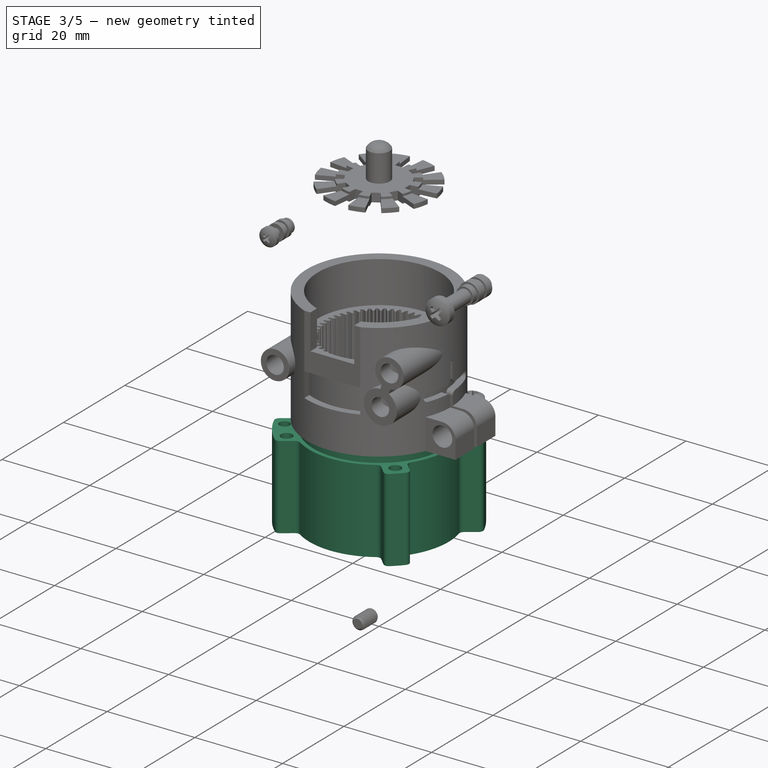
[diagram: stage 3 of 5 — iso view after this stage's code; geometry added in this stage tinted green]
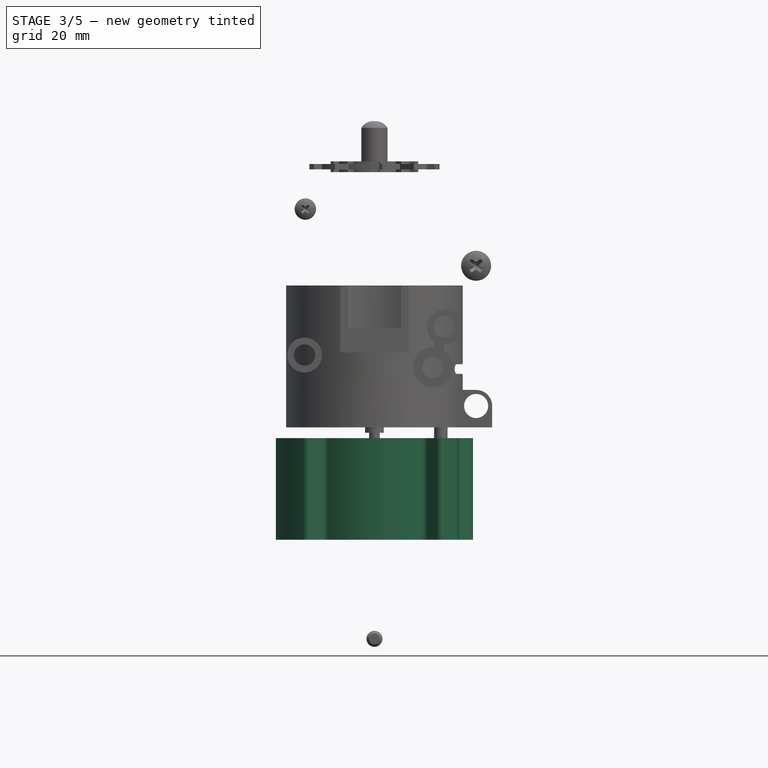
[diagram: stage 3 of 5 — front view after this stage's code; geometry added in this stage tinted green]
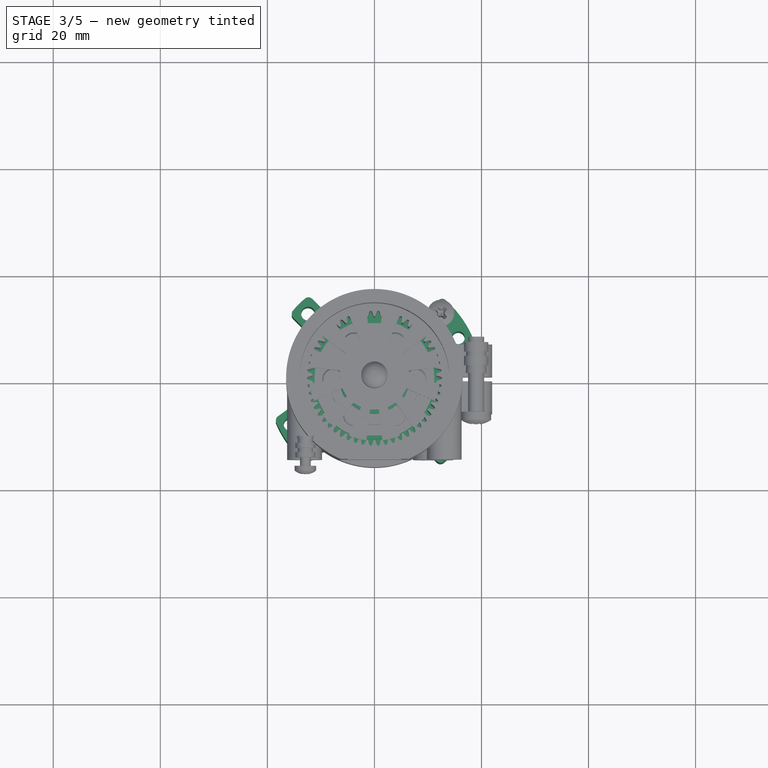
[diagram: stage 3 of 5 — top view after this stage's code; geometry added in this stage tinted green]
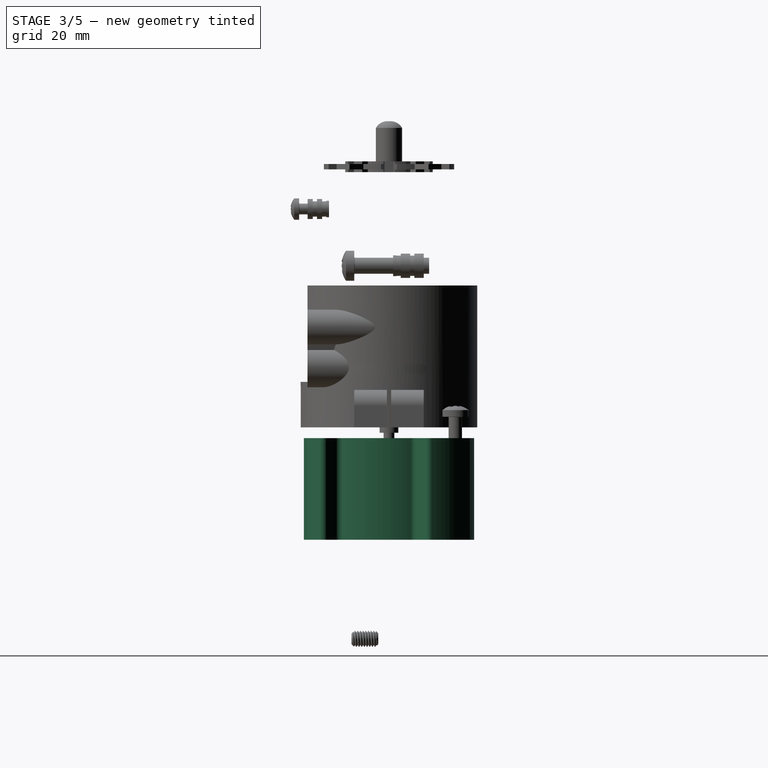
[diagram: stage 3 of 5 — right view after this stage's code; geometry added in this stage tinted green]
FEATURE [PartDesign::Body] Body001  label="Top"
  Group = -> [Sketch001,ShapeBinder,Revolution001,Sketch014,Pocket004,Sketch015,Pad005]
  Origin = -> Origin002
  Tip = -> Pad005
FEATURE [App::DocumentObjectGroup] Group  label="Motor"
  Group = -> [Body,Body001,Body002,Body003,Body004,Body005]
FEATURE [Sketcher::SketchObject] Sketch016
  FullyConstrained = false
  MapMode = 5
  Support = -> [XY_Plane007]
  sketch-geometry (37):
    g0: Circle CenterX=0 CenterY=0 CenterZ=0 NormalX=0 NormalY=0 NormalZ=1 AngleXU=0 Radius=6
    g1: ArcOfCircle CenterX=0 CenterY=0 CenterZ=0 NormalX=0 NormalY=0 NormalZ=1 AngleXU=0 Radius=15.9 StartAngle=0.993244 EndAngle=2.14758
    g2: LineSegment StartX=28.489 StartY=-28.489 StartZ=0 EndX=-28.489 EndY=28.489 EndZ=0
    g3: GeomPoint X=0 Y=0 Z=0
    g4: ArcOfCircle CenterX=0 CenterY=0 CenterZ=0 NormalX=0 NormalY=0 NormalZ=1 AngleXU=0 Radius=20 StartAngle=0.410684 EndAngle=0.841805
    g5: ArcOfCircle CenterX=0 CenterY=0 CenterZ=0 NormalX=0 NormalY=0 NormalZ=1 AngleXU=0 Radius=20 StartAngle=2.27716 EndAngle=2.43522
    g6: ArcOfCircle CenterX=0 CenterY=0 CenterZ=0 NormalX=0 NormalY=0 NormalZ=1 AngleXU=0 Radius=20 StartAngle=3.55228 EndAngle=3.9834
    g7: ArcOfCircle CenterX=0 CenterY=0 CenterZ=0 NormalX=0 NormalY=0 NormalZ=1 AngleXU=0 Radius=20 StartAngle=5.41876 EndAngle=5.57682
    g8: LineSegment StartX=12.0701 StartY=14.9813 StartZ=0 EndX=9.81308 EndY=13.3486 EndZ=0
    g9: LineSegment StartX=18.0062 StartY=6.77526 StartZ=0 EndX=15.7492 EndY=5.14256 EndZ=0
    g10: LineSegment StartX=-18.0062 StartY=-6.77526 StartZ=0 EndX=-15.7492 EndY=-5.14256 EndZ=0
    g11: LineSegment StartX=-12.0701 StartY=-14.9813 StartZ=0 EndX=-9.81308 EndY=-13.3486 EndZ=0
    g12: ArcOfCircle CenterX=0 CenterY=0 CenterZ=0 NormalX=0 NormalY=0 NormalZ=1 AngleXU=0 Radius=15.9 StartAngle=4.13484 EndAngle=5.28918
    g13: LineSegment StartX=-15.1609 StartY=11.6253 StartZ=0 EndX=-13.4588 EndY=9.92326 EndZ=0
    g14: LineSegment StartX=-11.6253 StartY=15.1609 StartZ=0 EndX=-9.92326 EndY=13.4588 EndZ=0
    g15: LineSegment StartX=15.1609 StartY=-11.6253 StartZ=0 EndX=13.4588 EndY=-9.92326 EndZ=0
    g16: LineSegment StartX=11.6253 StartY=-15.1609 StartZ=0 EndX=9.92326 EndY=-13.4588 EndZ=0
    g17: ArcOfCircle CenterX=0 CenterY=0 CenterZ=0 NormalX=0 NormalY=0 NormalZ=1 AngleXU=0 Radius=15.9 StartAngle=2.5648 EndAngle=3.40084
    g18: ArcOfCircle CenterX=0 CenterY=0 CenterZ=0 NormalX=0 NormalY=0 NormalZ=1 AngleXU=0 Radius=15.9 StartAngle=5.7064 EndAngle=6.54243
    g19: LineSegment StartX=-28.489 StartY=-28.489 StartZ=0 EndX=28.489 EndY=28.489 EndZ=0
    g20: LineSegment StartX=12.0701 StartY=14.9813 StartZ=0 EndX=-18.0062 EndY=-6.77526 EndZ=0
    g21: ArcOfCircle CenterX=-14.1659 CenterY=9.21615 CenterZ=0 NormalX=0 NormalY=0 NormalZ=1 AngleXU=0 Radius=1 StartAngle=5.7064 EndAngle=7.06858
    g22: ArcOfCircle CenterX=-14.4538 CenterY=12.3324 CenterZ=0 NormalX=0 NormalY=0 NormalZ=1 AngleXU=0 Radius=1 StartAngle=2.43522 EndAngle=3.92699
    g23: ArcOfCircle CenterX=-12.3324 CenterY=14.4538 CenterZ=0 NormalX=0 NormalY=0 NormalZ=1 AngleXU=0 Radius=1 StartAngle=0.785398 EndAngle=2.27716
    g24: ArcOfCircle CenterX=9.21615 CenterY=-14.1659 CenterZ=0 NormalX=0 NormalY=0 NormalZ=1 AngleXU=0 Radius=1 StartAngle=0.785398 EndAngle=2.14758
    g25: ArcOfCircle CenterX=12.3324 CenterY=-14.4538 CenterZ=0 NormalX=0 NormalY=0 NormalZ=1 AngleXU=0 Radius=1 StartAngle=3.92699 EndAngle=5.41876
    g26: ArcOfCircle CenterX=14.4538 CenterY=-12.3324 CenterZ=0 NormalX=0 NormalY=0 NormalZ=1 AngleXU=0 Radius=1 StartAngle=5.57682 EndAngle=7.06858
    g27: ArcOfCircle CenterX=14.1659 CenterY=-9.21615 CenterZ=0 NormalX=0 NormalY=0 NormalZ=1 AngleXU=0 Radius=1 StartAngle=2.5648 EndAngle=3.92699
    g28: ArcOfCircle CenterX=-9.21615 CenterY=14.1659 CenterZ=0 NormalX=0 NormalY=0 NormalZ=1 AngleXU=0 Radius=1 StartAngle=3.92699 EndAngle=5.28918
    g29: ArcOfCircle CenterX=9.22697 CenterY=14.1588 CenterZ=0 NormalX=0 NormalY=0 NormalZ=1 AngleXU=0 Radius=1 StartAngle=4.13484 EndAngle=5.33863
    g30: ArcOfCircle CenterX=12.6562 CenterY=14.1711 CenterZ=0 NormalX=0 NormalY=0 NormalZ=1 AngleXU=0 Radius=1 StartAngle=0.841805 EndAngle=2.19704
    g31: ArcOfCircle CenterX=17.4201 CenterY=7.5855 CenterZ=0 NormalX=0 NormalY=0 NormalZ=1 AngleXU=0 Radius=1 StartAngle=5.33863 EndAngle=6.69387
    g32: ArcOfCircle CenterX=16.3353 CenterY=4.33233 CenterZ=0 NormalX=0 NormalY=0 NormalZ=1 AngleXU=0 Radius=1 StartAngle=2.19704 EndAngle=3.40084
    g33: ArcOfCircle CenterX=-17.4201 CenterY=-7.5855 CenterZ=0 NormalX=0 NormalY=0 NormalZ=1 AngleXU=0 Radius=1 StartAngle=2.19704 EndAngle=3.55228
    g34: ArcOfCircle CenterX=-16.3353 CenterY=-4.33233 CenterZ=0 NormalX=0 NormalY=0 NormalZ=1 AngleXU=0 Radius=1 StartAngle=5.33863 EndAngle=6.54243
    g35: ArcOfCircle CenterX=-9.22697 CenterY=-14.1588 CenterZ=0 NormalX=0 NormalY=0 NormalZ=1 AngleXU=0 Radius=1 StartAngle=0.993244 EndAngle=2.19704
    g36: ArcOfCircle CenterX=-12.6562 CenterY=-14.1711 CenterZ=0 NormalX=0 NormalY=0 NormalZ=1 AngleXU=0 Radius=1 StartAngle=3.9834 EndAngle=5.33863
  constraints (90):
    c: Coincident(g0,g-1)
    c: Coincident(g1,g0)
    c: Diameter(g1) = 31.8
    c: Diameter(g0) = 12
    c: Coincident(g3,g0)
    c: Symmetric(g2,g2,g0)
    c: Coincident(g4,g0)
    c: Coincident(g5,g0)
    c: Coincident(g6,g0)
    c: Coincident(g7,g0)
    c: Equal(g5,g4)
    c: Equal(g6,g7)
    c: Equal(g7,g4)
    c: Radius(g4) = 20
    c: Parallel(g8,g9)
    c: Parallel(g9,g10)
    c: Parallel(g10,g11)
    c: Equal(g1,g12)
    c: Coincident(g1,g12)
    c: Parallel(g16,g15)
    c: Parallel(g15,g13)
    c: Parallel(g13,g14)
    c: Parallel(g14,g2)
    c: Equal(g1,g17)
    c: Coincident(g1,g17)
    c: Equal(g12,g18)
    c: Coincident(g12,g18)
    c: Symmetric(g19,g19,g0)
    c: Angle(g2) = 2.35619
    c: Perpendicular(g2,g19)
    c: Parallel(g8,g20)
    c: Tangent(g13,g21) = 1.5708
    c: Tangent(g17,g21) = 1.5708
    c: Tangent(g5,g22) = -1.5708
    c: Tangent(g13,g22) = -1.5708
    c: Tangent(g14,g23) = 1.5708
    c: Tangent(g5,g23) = -1.5708
    c: Tangent(g12,g24) = 1.5708
    c: Tangent(g16,g24) = -1.5708
    c: Tangent(g7,g25) = -1.5708
    c: Tangent(g16,g25) = 1.5708
    c: Tangent(g15,g26) = -1.5708
    c: Tangent(g7,g26) = -1.5708
    c: Tangent(g18,g27) = 1.5708
    c: Tangent(g15,g27) = 1.5708
    c: Tangent(g1,g28) = 1.5708
    c: Tangent(g14,g28) = -1.5708
    c: Distance(g13,g2) = 2.5
    c: Distance(g14,g2) = 2.5
    c: Distance(g16,g2) = 2.5
    c: Distance(g15,g2) = 2.5
    c: Equal(g24,g25)
    c: Equal(g25,g26)
    c: Equal(g26,g27)
    c: Equal(g27,g28)
    c: Equal(g28,g23)
    c: Equal(g23,g22)
    c: Equal(g22,g21)
    c: Radius(g27) = 1
    c: Tangent(g1,g29) = 1.5708
    c: Tangent(g8,g29) = 1.5708
    c: Tangent(g8,g30) = -1.5708
    c: Tangent(g4,g30) = -1.5708
    c: Tangent(g4,g31) = -1.5708
    c: Tangent(g9,g31) = 1.5708
    c: Tangent(g9,g32) = -1.5708
    c: Tangent(g18,g32) = 1.5708
    c: Tangent(g6,g33) = -1.5708
    c: Tangent(g10,g33) = 1.5708
    c: Tangent(g17,g34) = 1.5708
    c: Tangent(g10,g34) = -1.5708
    c: Tangent(g11,g35) = 1.5708
    c: Tangent(g12,g35) = 1.5708
    c: Tangent(g6,g36) = -1.5708
    c: Tangent(g11,g36) = -1.5708
    c: Distance(g9,g19) = 7.5
    c: Distance(g8,g19) = 2.5
    c: Distance(g11,g19) = 2.5
    c: Distance(g10,g19) = 7.5
    c: Coincident(g10,g20)
    c: Coincident(g20,g8)
    c: Equal(g34,g33)
    c: Equal(g33,g36)
    c: Equal(g36,g35)
    c: Equal(g35,g32)
    c: Equal(g32,g30)
    c: Equal(g30,g29)
    c: Equal(g29,g31)
    c: Equal(g32,g27)
    c: Equal(g19,g2)
FEATURE [PartDesign::Pad] Pad006
  Direction = (0,0,1)
  Length = 2
  Length2 = 10
  Profile = -> Sketch016
  ReferenceAxis = -> Sketch016 [N_Axis]
  Reversed = true
  Type = 0
FEATURE [Sketcher::SketchObject] Sketch017
  ExternalGeometry = -> [Pad006]
  FullyConstrained = true
  MapMode = 5
  Placement = pos=(0,0,-2) rot=(1,0,0;3.14159rad)
  Support = -> [Pad006]
  sketch-geometry (2):
    g0: LineSegment StartX=0 StartY=0 StartZ=0 EndX=14.098 EndY=14.098 EndZ=0
    g1: Circle CenterX=12.4009 CenterY=12.4009 CenterZ=0 NormalX=0 NormalY=0 NormalZ=1 AngleXU=0 Radius=1.3
  constraints (5):
    c: Coincident(g0,g-1)
    c: PointOnObject(g1,g0)
    c: Diameter(g1) = 2.6
    c: Symmetric(g-4,g-4,g0)
    c: Distance(g1,g0) = 2.4
FEATURE [PartDesign::Pocket] Pocket005
  BaseFeature = -> Pad006
  Direction = (0,0,1)
  Length = 5
  Length2 = 5
  Profile = -> Sketch017
  ReferenceAxis = -> Sketch017 [N_Axis]
  Type = 2
FEATURE [PartDesign::PolarPattern] PolarPattern004
  Angle = 360
  Axis = -> Sketch017 [N_Axis]
  BaseFeature = -> Pocket005
  Occurrences = 4
  Originals = -> [Pocket005]
FEATURE [Sketcher::SketchObject] Sketch018
  ExternalGeometry = -> [PolarPattern004]
  FullyConstrained = false
  MapMode = 5
  Support = -> [PolarPattern004]
  sketch-geometry (10):
    g0: Circle CenterX=15.6612 CenterY=7.8981 CenterZ=0 NormalX=0 NormalY=0 NormalZ=1 AngleXU=0 Radius=1
    g1: Circle CenterX=-15.7453 CenterY=-8.28537 CenterZ=0 NormalX=0 NormalY=0 NormalZ=1 AngleXU=0 Radius=1
    g2: LineSegment StartX=9.81308 StartY=13.3486 StartZ=0 EndX=14.0764 EndY=16.4326 EndZ=0
    g3: LineSegment StartX=15.7492 StartY=5.14256 StartZ=0 EndX=24.9034 EndY=11.7646 EndZ=0
    g4: ArcOfCircle CenterX=0 CenterY=0 CenterZ=0 NormalX=0 NormalY=0 NormalZ=1 AngleXU=0 Radius=20 StartAngle=0.370258 EndAngle=0.882231
    g5: LineSegment StartX=0 StartY=0 StartZ=0 EndX=12.7086 EndY=15.4432 EndZ=0
    g6: LineSegment StartX=0 StartY=0 StartZ=0 EndX=18.6447 EndY=7.23712 EndZ=0
    g7: LineSegment StartX=0 StartY=0 StartZ=0 EndX=12.4009 EndY=12.4009 EndZ=0
    g8: LineSegment StartX=15.6612 StartY=7.8981 StartZ=0 EndX=0 EndY=0 EndZ=0
    g9: LineSegment StartX=0 StartY=0 StartZ=0 EndX=-15.6612 EndY=-7.8981 EndZ=0
  constraints (28):
    c: Equal(g1,g0)
    c: Diameter(g1) = 2
    c: Coincident(g2,g-3)
    c: Parallel(g-3,g2)
    c: Coincident(g3,g-6)
    c: Parallel(g-6,g3)
    c: PointOnObject(g4,g3)
    c: PointOnObject(g4,g2)
    c: Coincident(g4,g-5)
    c: Equal(g-5,g4)
    c: Coincident(g5,g4)
    c: Coincident(g5,g4)
    c: Coincident(g6,g4)
    c: Coincident(g6,g4)
    c: Angle(g6,g5) = 0.511973
    c: Coincident(g7,g4)
    c: Coincident(g7,g-7)
    c: Angle(g7,g5) = 0.0968329
    c: Coincident(g8,g0)
    c: Coincident(g8,g4)
    c: Angle(g6,g8) = 0.096833
    c: Coincident(g9,g4)
    c: Parallel(g8,g9)
    c: Distance(g7) = 17.5376
    c: Distance(g8) = 17.54
    c: Angle(g8,g3) = 0.159154
    c: Angle(g9,g-4) = 0.159154
    c: Equal(g8,g9)
FEATURE [PartDesign::Hole] Hole
  BaseFeature = -> PolarPattern004
  CustomThreadClearance = 0
  Depth = 3
  DepthType = 0
  Diameter = 2.4
  DrillForDepth = false
  DrillPoint = 1
  DrillPointAngle = 118
  HoleCutCountersinkAngle = 90
  HoleCutCustomValues = false
  HoleCutDepth = 1.2
  HoleCutDiameter = 3.6
  HoleCutType = 1
  ModelThread = false
  Profile = -> Sketch018
  Tapered = false
  TaperedAngle = 90
  ThreadClass = 0
  ThreadDepth = 3
  ThreadDepthType = 0
  ThreadDirection = 0
  ThreadFit = 0
  ThreadSize = 6
  ThreadType = 1
  Threaded = false
  UseCustomThreadClearance = false
FEATURE [Sketcher::SketchObject] Sketch019
  FullyConstrained = true
  MapMode = 5
  Support = -> [Hole]
  sketch-geometry (1):
    g0: Circle CenterX=0 CenterY=0 CenterZ=0 NormalX=0 NormalY=0 NormalZ=1 AngleXU=0 Radius=12.5
  constraints (2):
    c: Coincident(g0,g-1)
    c: Diameter(g0) = 25
FEATURE [PartDesign::Pocket] Pocket006
  BaseFeature = -> Hole
  Direction = (0,0,-1)
  Length = 2
  Length2 = 5
  Profile = -> Sketch019
  ReferenceAxis = -> Sketch019 [N_Axis]
  Type = 0
FEATURE [Sketcher::SketchObject] Sketch020
  FullyConstrained = true
  MapMode = 5
  Placement = pos=(0,0,-2) rot=(1,0,0;3.14159rad)
  Support = -> [Pocket006]
  sketch-geometry (1):
    g0: Circle CenterX=0 CenterY=0 CenterZ=0 NormalX=0 NormalY=0 NormalZ=1 AngleXU=0 Radius=15
  constraints (2):
    c: Coincident(g0,g-1)
    c: Diameter(g0) = 30
FEATURE [PartDesign::Pad] Pad007
  BaseFeature = -> Pocket006
  Direction = (0,0,-1)
  Length = 0.8
  Length2 = 10
  Profile = -> Sketch020
  ReferenceAxis = -> Sketch020 [N_Axis]
  Type = 0
FEATURE [Sketcher::SketchObject] Sketch021
  FullyConstrained = true
  MapMode = 5
  Placement = pos=(0,0,-2) rot=(0,0,1;0rad)
  Support = -> [Pad007]
  sketch-geometry (1):
    g0: Circle CenterX=0 CenterY=0 CenterZ=0 NormalX=0 NormalY=0 NormalZ=1 AngleXU=0 Radius=6
  constraints (2):
    c: Coincident(g0,g-1)
    c: Diameter(g0) = 12
FEATURE [PartDesign::Pocket] Pocket007
  BaseFeature = -> Pad007
  Direction = (0,0,-1)
  Length = 5
  Length2 = 5
  Profile = -> Sketch021
  ReferenceAxis = -> Sketch021 [N_Axis]
  Type = 2
FEATURE [PartDesign::Body] Body007  label="Plastic protector"
  Group = -> [Sketch022,Pad008]
  Origin = -> Origin008
  Placement = pos=(0,0,-2.9) rot=(0,0,1;0rad)
  Tip = -> Pad008
FEATURE [PartDesign::ShapeBinder] ShapeBinder003
  Support = -> [Pocket007]
  TraceSupport = false
FEATURE [PartDesign::Pad] Pad009
  Direction = (0,0,-1)
  Length = 19
  Length2 = 10
  Profile = -> ShapeBinder003
  Type = 0
FEATURE [PartDesign::Body] Body011  label="Shaft"
  Group = -> [Sketch032,ShapeBinder006,Revolution005,Sketch033,Pocket012,Sketch034,Pocket013,Sketch035,Pocket014,Chamfer003]
  Origin = -> Origin012
  Placement = pos=(0,0,0.4) rot=(0,0,1;0rad)
  Tip = -> Chamfer003
FEATURE [Sketcher::SketchObject] Sketch036
  FullyConstrained = false
  MapMode = 5
  Support = -> [XY_Plane013]
  sketch-geometry (9):
    g0: ArcOfCircle CenterX=0 CenterY=-1e-16 CenterZ=0 NormalX=0 NormalY=0 NormalZ=1 AngleXU=0 Radius=11.15 StartAngle=2.41226 EndAngle=8.58332
    g1: LineSegment StartX=-2 StartY=2 StartZ=0 EndX=-2 EndY=-2 EndZ=0
    g2: LineSegment StartX=-2 StartY=-2 StartZ=0 EndX=2 EndY=-2 EndZ=0
    g3: LineSegment StartX=2 StartY=-2 StartZ=0 EndX=2 EndY=2 EndZ=0
    g4: LineSegment StartX=2 StartY=2 StartZ=0 EndX=-2 EndY=2 EndZ=0
    g5: GeomPoint X=0 Y=-1e-16 Z=0
    g6: LineSegment StartX=0 StartY=-1e-16 StartZ=0 EndX=-12.935 EndY=12.935 EndZ=0
    g7: GeomPoint X=-7.88424 Y=7.88424 Z=0
    g8: ArcOfCircle CenterX=-7.88424 CenterY=7.88424 CenterZ=0 NormalX=0 NormalY=0 NormalZ=1 AngleXU=0 Radius=0.625 StartAngle=3.95502 EndAngle=7.04055
  constraints (22):
    c: Coincident(g0,g-1)
    c: Coincident(g1,g2)
    c: Coincident(g2,g3)
    c: Coincident(g3,g4)
    c: Coincident(g4,g1)
    c: Horizontal(g2)
    c: Horizontal(g4)
    c: Vertical(g1)
    c: Vertical(g3)
    c: Symmetric(g2,g1,g5)
    c: Coincident(g5,g0)
    c: Equal(g3,g4)
    c: DistanceX(g4,g4) = 4
    c: Diameter(g0) = 22.3
    c: Coincident(g6,g0)
    c: Angle(g6) = 2.35619
    c: PointOnObject(g7,g6)
    c: PointOnObject(g7,g0)
    c: Coincident(g8,g7)
    c: Coincident(g0,g8)
    c: Coincident(g8,g0)
    c: Radius(g8) = 0.625
FEATURE [PartDesign::Pad] Pad014
  Direction = (0,0,1)
  Length = 2
  Length2 = 10
  Profile = -> Sketch036
  ReferenceAxis = -> Sketch036 [N_Axis]
  Type = 0
FEATURE [Sketcher::SketchObject] Sketch037
  FullyConstrained = true
  MapMode = 5
  Placement = pos=(0,0,2) rot=(0,0,1;0rad)
  Support = -> [Pad014]
  sketch-geometry (1):
    g0: Circle CenterX=7.75 CenterY=0 CenterZ=0 NormalX=0 NormalY=0 NormalZ=1 AngleXU=0 Radius=2
  constraints (3):
    c: PointOnObject(g0,g-1)
    c: Diameter(g0) = 4
    c: DistanceX(g0) = 7.75
FEATURE [PartDesign::Pad] Pad015
  BaseFeature = -> Pad014
  Direction = (0,0,1)
  Length = 3
  Length2 = 10
  Profile = -> Sketch037
  ReferenceAxis = -> Sketch037 [N_Axis]
  Type = 0
FEATURE [PartDesign::Chamfer] Chamfer004
  Angle = 45
  Base = -> Pad015 [Edge21]
  BaseFeature = -> Pad015
  ChamferType = 0
  FlipDirection = false
  Size = 0.25
  Size2 = 1
  SupportTransform = false
  UseAllEdges = false
FEATURE [PartDesign::PolarPattern] PolarPattern007
  Angle = 360
  Axis = -> Z_Axis013
  BaseFeature = -> Chamfer004
  Occurrences = 6
  Originals = -> [Pad015,Chamfer004]
FEATURE [PartDesign::Body] Body013  label="Gear 4mm int diam"
  Group = -> [involutegear001,Sketch038,Pocket015]
  Origin = -> Origin014
  Placement = pos=(7.75,0,-16.4) rot=(0,0,1;0rad)
  Tip = -> Pocket015
FEATURE [App::LinkElement] Link_i0
  LinkPlacement = pos=(-3.875,6.7117,0) rot=(0,0,1;0rad)
  LinkedObject = -> Body013
  Placement = pos=(-3.875,6.7117,0) rot=(0,0,1;0rad)
  _LinkOwner = 3581
  expr: .Placement.Base.x = -7.75 * cos(60)
  expr: .Placement.Base.y = 7.75 * sin(60)
FEATURE [App::LinkElement] Link_i1
  LinkPlacement = pos=(-3.875,-6.7117,0) rot=(0,0,1;0rad)
  LinkedObject = -> Body013
  Placement = pos=(-3.875,-6.7117,0) rot=(0,0,1;0rad)
  _LinkOwner = 3581
  expr: .Placement.Base.x = -7.75 * cos(60)
  expr: .Placement.Base.y = -7.75 * sin(60)
FEATURE [App::LinkElement] Link_i2
  LinkPlacement = pos=(7.75,0,5) rot=(0,0,1;0rad)
  LinkedObject = -> Body013
  Placement = pos=(7.75,0,5) rot=(0,0,1;0rad)
  _LinkOwner = 3581
FEATURE [App::LinkElement] Link_i3
  LinkPlacement = pos=(-3.875,6.7117,5) rot=(0,0,1;0rad)
  LinkedObject = -> Body013
  Placement = pos=(-3.875,6.7117,5) rot=(0,0,1;0rad)
  _LinkOwner = 3581
  expr: .Placement.Base.x = -7.75 * cos(60)
  expr: .Placement.Base.y = 7.75 * sin(60)
FEATURE [App::LinkElement] Link_i4
  LinkPlacement = pos=(-3.875,-6.7117,5) rot=(0,0,1;0rad)
  LinkedObject = -> Body013
  Placement = pos=(-3.875,-6.7117,5) rot=(0,0,1;0rad)
  _LinkOwner = 3581
  expr: .Placement.Base.x = -7.75 * cos(60)
  expr: .Placement.Base.y = -7.75 * sin(60)
FEATURE [App::LinkElement] Link_i5
  LinkPlacement = pos=(7.75,0,10) rot=(0,0,1;0rad)
  LinkedObject = -> Body013
  Placement = pos=(7.75,0,10) rot=(0,0,1;0rad)
  _LinkOwner = 3581
FEATURE [App::LinkElement] Link_i6
  LinkPlacement = pos=(-3.875,6.7117,10) rot=(0,0,1;0rad)
  LinkedObject = -> Body013
  Placement = pos=(-3.875,6.7117,10) rot=(0,0,1;0rad)
  _LinkOwner = 3581
  expr: .Placement.Base.x = -7.75 * cos(60)
  expr: .Placement.Base.y = 7.75 * sin(60)
FEATURE [App::LinkElement] Link_i7
  LinkPlacement = pos=(-3.875,-6.7117,10) rot=(0,0,1;0rad)
  LinkedObject = -> Body013
  Placement = pos=(-3.875,-6.7117,10) rot=(0,0,1;0rad)
  _LinkOwner = 3581
  expr: .Placement.Base.x = -7.75 * cos(60)
  expr: .Placement.Base.y = -7.75 * sin(60)
FEATURE [App::Link] Link  label="Gear 4mm int diam001"
  ElementCount = 8
  ElementList = -> [Link_i0,Link_i1,Link_i2,Link_i3,Link_i4,Link_i5,Link_i6,Link_i7]
  LinkPlacement = pos=(0,0,-16.4) rot=(0,0,1;0rad)
  LinkedObject = -> Body013
  Placement = pos=(0,0,-16.4) rot=(0,0,1;0rad)
FEATURE [Sketcher::SketchObject] Sketch039
  FullyConstrained = true
  MapMode = 5
  Support = -> [XY_Plane015]
  sketch-geometry (2):
    g0: Circle CenterX=0 CenterY=0 CenterZ=0 NormalX=0 NormalY=0 NormalZ=1 AngleXU=0 Radius=3
    g1: Circle CenterX=0 CenterY=0 CenterZ=0 NormalX=0 NormalY=0 NormalZ=1 AngleXU=0 Radius=7.5
  constraints (4):
    c: Coincident(g0,g-1)
    c: Coincident(g1,g0)
    c: Diameter(g0) = 6
    c: Diameter(g1) = 15
FEATURE [PartDesign::Pad] Pad016
  Direction = (0,0,1)
  Length = 0.2
  Length2 = 10
  Profile = -> Sketch039
  ReferenceAxis = -> Sketch039 [N_Axis]
  Type = 0
FEATURE [PartDesign::Body] Body014  label="Flat washer"
  Group = -> [Sketch039,Pad016]
  Origin = -> Origin015
  Placement = pos=(0,0,-18.65) rot=(0,0,1;0rad)
  Tip = -> Pad016
FEATURE [App::Link] Link001  label="Flat washer001"
  LinkPlacement = pos=(0,0,-27.2) rot=(0,0,1;0rad)
  LinkedObject = -> Body014
  Placement = pos=(0,0,-27.2) rot=(0,0,1;0rad)
FEATURE [Sketcher::SketchObject] Sketch040
  FullyConstrained = true
  MapMode = 5
  Support = -> [XY_Plane016]
  sketch-geometry (2):
    g0: Circle CenterX=0 CenterY=0 CenterZ=0 NormalX=0 NormalY=0 NormalZ=1 AngleXU=0 Radius=3
    g1: Circle CenterX=0 CenterY=0 CenterZ=0 NormalX=0 NormalY=0 NormalZ=1 AngleXU=0 Radius=6.5
  constraints (4):
    c: Coincident(g0,g-1)
    c: Coincident(g1,g0)
    c: Diameter(g0) = 6
    c: Diameter(g1) = 13
FEATURE [PartDesign::Pad] Pad017
  Direction = (0,0,1)
  Length = 8.35
  Length2 = 10
  Profile = -> Sketch040
  ReferenceAxis = -> Sketch040 [N_Axis]
  Type = 0
FEATURE [PartDesign::Chamfer] Chamfer005
  Angle = 45
  Base = -> Pad017 [Edge2,Edge3]
  BaseFeature = -> Pad017
  ChamferType = 0
  FlipDirection = false
  Size = 0.2
  Size2 = 1
  SupportTransform = false
  UseAllEdges = false
FEATURE [PartDesign::Body] Body015  label="Bushing"
  Group = -> [Sketch040,Pad017,Chamfer005]
  Origin = -> Origin016
  Placement = pos=(0,0,-27) rot=(0,0,1;0rad)
  Tip = -> Chamfer005
FEATURE [Sketcher::SketchObject] Sketch041
  FullyConstrained = true
  MapMode = 5
  Support = -> [XY_Plane017]
  sketch-geometry (21):
    g0: Circle CenterX=0 CenterY=0 CenterZ=0 NormalX=0 NormalY=0 NormalZ=1 AngleXU=0 Radius=2.5
    g1: Circle CenterX=0 CenterY=0 CenterZ=0 NormalX=0 NormalY=0 NormalZ=1 AngleXU=0 Radius=5.75
    g2: Circle CenterX=0 CenterY=0 CenterZ=0 NormalX=0 NormalY=0 NormalZ=1 AngleXU=0 Radius=4.35
    g3: ArcOfCircle CenterX=0 CenterY=0 CenterZ=0 NormalX=0 NormalY=0 NormalZ=1 AngleXU=0 Radius=5.75 StartAngle=5.23599 EndAngle=10.472
    g4: ArcOfCircle CenterX=0 CenterY=0 CenterZ=0 NormalX=0 NormalY=0 NormalZ=1 AngleXU=0 Radius=2.5 StartAngle=1.309 EndAngle=1.8326
    g5: ArcOfCircle CenterX=0 CenterY=0 CenterZ=0 NormalX=0 NormalY=0 NormalZ=1 AngleXU=0 Radius=4.35 StartAngle=0 EndAngle=1.309
    g6: ArcOfCircle CenterX=0 CenterY=0 CenterZ=0 NormalX=0 NormalY=0 NormalZ=1 AngleXU=0 Radius=4.35 StartAngle=1.8326 EndAngle=3.14159
    g7: LineSegment StartX=-0.647048 StartY=2.41481 StartZ=0 EndX=-1.12586 EndY=4.20178 EndZ=0
    g8: LineSegment StartX=0.647048 StartY=2.41481 StartZ=0 EndX=1.12586 EndY=4.20178 EndZ=0
    g9: LineSegment StartX=0 StartY=0 StartZ=0 EndX=-0.647048 EndY=2.41481 EndZ=0
    g10: LineSegment StartX=0.647048 StartY=2.41481 StartZ=0 EndX=0 EndY=0 EndZ=0
    g11: LineSegment StartX=0 StartY=0 StartZ=0 EndX=-2.875 EndY=-4.97965 EndZ=0
    g12: LineSegment StartX=2.875 StartY=-4.97965 StartZ=0 EndX=0 EndY=0 EndZ=0
    g13: LineSegment StartX=-2.875 StartY=-4.97965 StartZ=0 EndX=-1.25 EndY=-2.16506 EndZ=0
    g14: LineSegment StartX=2.875 StartY=-4.97965 StartZ=0 EndX=1.25 EndY=-2.16506 EndZ=0
    g15: ArcOfCircle CenterX=0 CenterY=0 CenterZ=0 NormalX=0 NormalY=0 NormalZ=1 AngleXU=0 Radius=2.5 StartAngle=3.14159 EndAngle=4.18879
    g16: ArcOfCircle CenterX=0 CenterY=0 CenterZ=0 NormalX=0 NormalY=0 NormalZ=1 AngleXU=0 Radius=2.5 StartAngle=5.23599 EndAngle=6.28319
    g17: LineSegment StartX=-4.35 StartY=5e-16 StartZ=0 EndX=-2.5 EndY=3e-16 EndZ=0
    g18: LineSegment StartX=2.5 StartY=-6e-16 StartZ=0 EndX=4.35 EndY=0 EndZ=0
    g19: LineSegment StartX=-1.12586 StartY=4.20178 StartZ=0 EndX=1.12586 EndY=4.20178 EndZ=0
    g20: LineSegment StartX=2.875 StartY=-4.97965 StartZ=0 EndX=-2.875 EndY=-4.97965 EndZ=0
  constraints (54):
    c: Coincident(g0,g-1)
    c: Coincident(g1,g0)
    c: Diameter(g0) = 5
    c: Diameter(g1) = 11.5
    c: Coincident(g2,g0)
    c: Diameter(g2) = 8.7
    c: PointOnObject(g3,g1)
    c: Coincident(g3,g0)
    c: Coincident(g4,g3)
    c: PointOnObject(g4,g0)
    c: Coincident(g5,g3)
    c: PointOnObject(g5,g2)
    c: Coincident(g6,g3)
    c: PointOnObject(g6,g2)
    c: Coincident(g7,g4)
    c: Coincident(g7,g6)
    c: Coincident(g8,g4)
    c: Coincident(g8,g5)
    c: Coincident(g9,g3)
    c: Coincident(g9,g4)
    c: Coincident(g10,g4)
    c: Coincident(g10,g3)
    c: Parallel(g8,g10)
    c: Parallel(g9,g7)
    c: PointOnObject(g6,g-1)
    c: PointOnObject(g5,g-1)
    c: Coincident(g11,g3)
    c: Coincident(g11,g3)
    c: Coincident(g12,g3)
    c: Coincident(g12,g3)
    c: Coincident(g13,g3)
    c: PointOnObject(g13,g0)
    c: Coincident(g14,g3)
    c: Parallel(g14,g12)
    c: PointOnObject(g14,g0)
    c: Parallel(g13,g11)
    c: Coincident(g15,g3)
    c: Coincident(g15,g13)
    c: PointOnObject(g15,g-1)
    c: Coincident(g16,g3)
    c: Coincident(g16,g14)
    c: PointOnObject(g16,g-1)
    c: Coincident(g17,g6)
    c: Coincident(g17,g15)
    c: Coincident(g18,g16)
    c: Coincident(g18,g5)
    c: Coincident(g19,g6)
    c: Coincident(g19,g5)
    c: Coincident(g20,g3)
    c: Coincident(g20,g3)
    c: Horizontal(g20)
    c: Horizontal(g19)
    c: Angle(g8,g7) = 0.523599
    c: Angle(g13,g14) = 1.0472
FEATURE [PartDesign::Pad] Pad018
  Direction = (0,0,1)
  Length = 0.65
  Length2 = 10
  Profile = -> Sketch041
  ReferenceAxis = -> Sketch041 [N_Axis]
  Type = 0
FEATURE [PartDesign::Body] Body016  label="Retaining ring"
  Group = -> [Sketch041,Pad018]
  Origin = -> Origin017
  Placement = pos=(0,0,-27.9) rot=(0,0,1;0rad)
  Tip = -> Pad018
FEATURE [Sketcher::SketchObject] Sketch042
  FullyConstrained = true
  MapMode = 5
  Support = -> [XY_Plane018]
  sketch-geometry (2):
    g0: Circle CenterX=0 CenterY=0 CenterZ=0 NormalX=0 NormalY=0 NormalZ=1 AngleXU=0 Radius=9
    g1: Circle CenterX=0 CenterY=0 CenterZ=0 NormalX=0 NormalY=0 NormalZ=1 AngleXU=0 Radius=15
  constraints (4):
    c: Coincident(g0,g-1)
    c: Coincident(g1,g0)
    c: Diameter(g1) = 30
    c: Diameter(g0) = 18
FEATURE [PartDesign::Pad] Pad019
  Direction = (0,0,1)
  Length = 0.5
  Length2 = 10
  Profile = -> Sketch042
  ReferenceAxis = -> Sketch042 [N_Axis]
  Type = 0
FEATURE [PartDesign::Body] Body017  label="Plastic protector 2"
  Group = -> [Sketch042,Pad019]
  Origin = -> Origin018
  Placement = pos=(0,0,-20.59) rot=(0,0,1;0rad)
  Tip = -> Pad019
FEATURE [Sketcher::SketchObject] Sketch043
  ExternalGeometry = -> [PolarPattern007]
  FullyConstrained = true
  MapMode = 5
  Placement = pos=(0,0,5) rot=(0,0,1;0rad)
  Support = -> [PolarPattern007]
  sketch-geometry (1):
    g0: Circle CenterX=7.75 CenterY=0 CenterZ=0 NormalX=0 NormalY=0 NormalZ=1 AngleXU=0 Radius=0.625
  constraints (2):
    c: Coincident(g-3,g0)
    c: Diameter(g0) = 1.25
FEATURE [PartDesign::Pocket] Pocket016
  BaseFeature = -> PolarPattern007
  Direction = (0,0,-1)
  Length = 0.1
  Length2 = 5
  Profile = -> Sketch043
  ReferenceAxis = -> Sketch043 [N_Axis]
  Type = 0
FEATURE [PartDesign::PolarPattern] PolarPattern008
  Angle = 360
  Axis = -> Sketch043 [N_Axis]
  BaseFeature = -> Pocket016
  Occurrences = 3
  Originals = -> [Pocket016]
FEATURE [PartDesign::PolarPattern] PolarPattern011
  Angle = 360
  Axis = -> Sketch047 [N_Axis]
  BaseFeature = -> Pocket018
  Occurrences = 6
  Originals = -> [Pocket018]
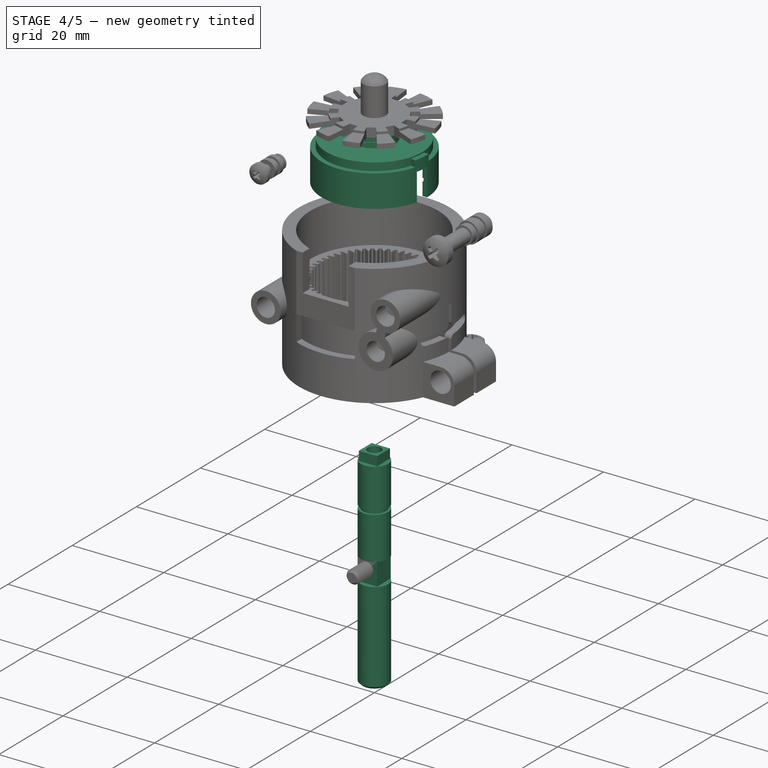
[diagram: stage 4 of 5 — iso view after this stage's code; geometry added in this stage tinted green]
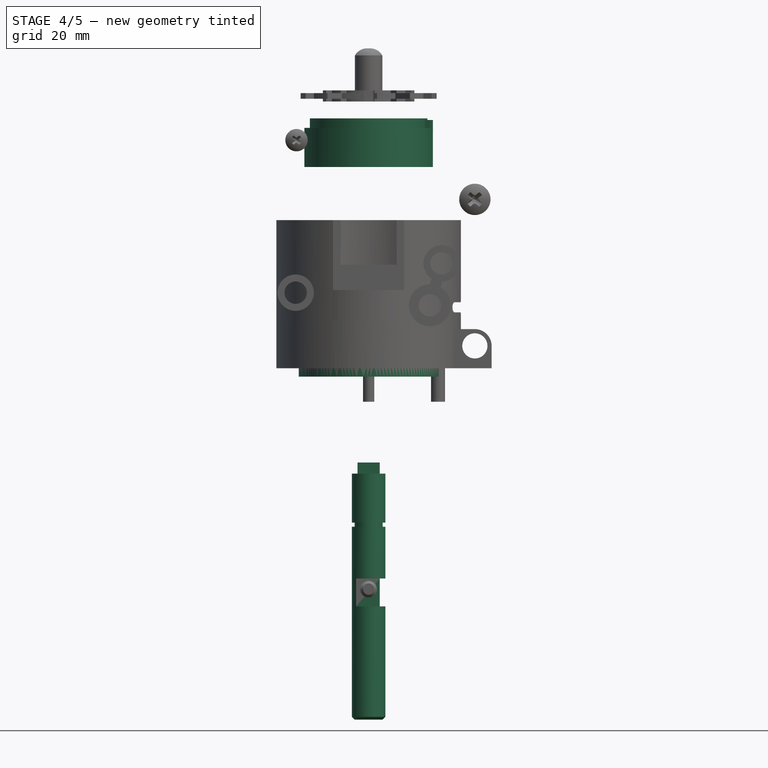
[diagram: stage 4 of 5 — front view after this stage's code; geometry added in this stage tinted green]
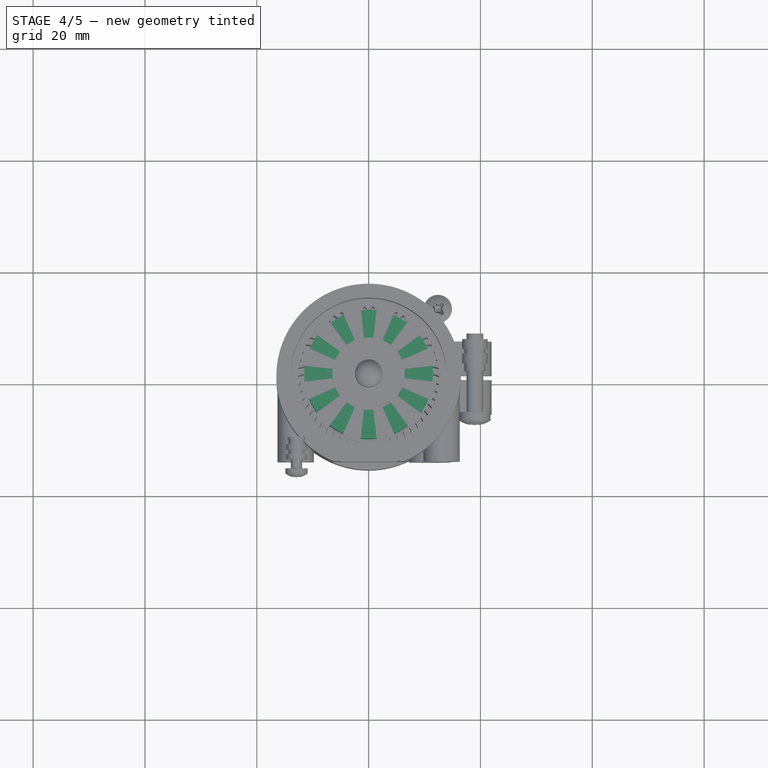
[diagram: stage 4 of 5 — top view after this stage's code; geometry added in this stage tinted green]
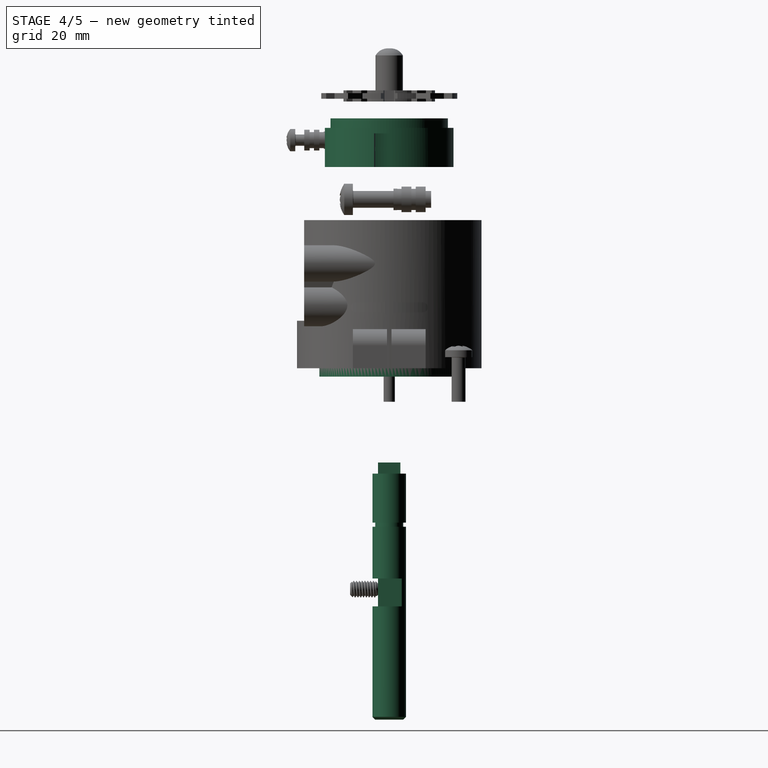
[diagram: stage 4 of 5 — right view after this stage's code; geometry added in this stage tinted green]
FEATURE [PartDesign::Body] Body  label="Main Motor"
  Group = -> [Sketch,Revolution]
  Origin = -> Origin001
  Tip = -> Revolution
FEATURE [PartDesign::ShapeBinder] ShapeBinder
  Placement = pos=(0,0,0) rot=(1,0,0;1.5708rad)
  Support = -> [Sketch]
  TraceSupport = false
FEATURE [Sketcher::SketchObject] Sketch001
  ExternalGeometry = -> [ShapeBinder]
  FullyConstrained = true
  MapMode = 5
  Placement = pos=(0,0,0) rot=(1,0,0;1.5708rad)
  Support = -> [XZ_Plane002]
  sketch-geometry (12):
    g0: LineSegment StartX=-4.5 StartY=42 StartZ=0 EndX=-4.5 EndY=44.7 EndZ=0
    g1: LineSegment StartX=-4.5 StartY=44.7 StartZ=0 EndX=-10.5 EndY=44.7 EndZ=0
    g2: LineSegment StartX=-10.5 StartY=44.7 StartZ=0 EndX=-10.5 EndY=43 EndZ=0
    g3: LineSegment StartX=-10.5 StartY=43 StartZ=0 EndX=-11.5 EndY=43 EndZ=0
    g4: LineSegment StartX=-11.5 StartY=43 StartZ=0 EndX=-11.5 EndY=36 EndZ=0
    g5: LineSegment StartX=-11.5 StartY=36 StartZ=0 EndX=-10.5 EndY=36 EndZ=0
    g6: LineSegment StartX=-10.5 StartY=36 StartZ=0 EndX=-10.5 EndY=38.85 EndZ=0
    g7: LineSegment StartX=-10.5 StartY=38.85 StartZ=0 EndX=-10.75 EndY=38.85 EndZ=0
    g8: LineSegment StartX=-10.75 StartY=38.85 StartZ=0 EndX=-10.75 EndY=39.6 EndZ=0
    g9: LineSegment StartX=-10.75 StartY=39.6 StartZ=0 EndX=-10.5 EndY=39.6 EndZ=0
    g10: LineSegment StartX=-10.5 StartY=39.6 StartZ=0 EndX=-10.5 EndY=42 EndZ=0
    g11: LineSegment StartX=-10.5 StartY=42 StartZ=0 EndX=-4.5 EndY=42 EndZ=0
  constraints (33):
    c: Coincident(g0,g1)
    c: Horizontal(g1)
    c: Coincident(g1,g2)
    c: Vertical(g2)
    c: Coincident(g2,g3)
    c: Coincident(g3,g4)
    c: Vertical(g4)
    c: Horizontal(g3)
    c: Coincident(g4,g5)
    c: Coincident(g5,g6)
    c: Coincident(g6,g7)
    c: Coincident(g7,g8)
    c: Coincident(g8,g9)
    c: Horizontal(g9)
    c: Coincident(g9,g10)
    c: Vertical(g10)
    c: Coincident(g10,g11)
    c: Coincident(g11,g0)
    c: Horizontal(g11)
    c: Vertical(g0)
    c: Vertical(g6)
    c: Vertical(g8)
    c: Horizontal(g7)
    c: Horizontal(g5)
    c: Equal(g-7,g5)
    c: Coincident(g5,g-7)
    c: Equal(g6,g-6)
    c: Coincident(g-4,g8)
    c: Coincident(g10,g-5)
    c: DistanceX(g0) = -4.5
    c: DistanceX(g1,g1) = 6
    c: DistanceY(g2,g2) = 1.7
    c: DistanceY(g4,g4) = 7
FEATURE [PartDesign::Revolution] Revolution001
  Angle = 360
  Axis = (0,2e-16,1)
  Base = (0,0,0)
  Placement = pos=(0,0,0) rot=(1,0,0;1.5708rad)
  Profile = -> Sketch001
  ReferenceAxis = -> Sketch001 [V_Axis]
FEATURE [PartDesign::Body] Body005  label="Gear"
  Group = -> [involutegear,Sketch004,Pocket]
  Origin = -> Origin006
  Placement = pos=(0,0,-5) rot=(0,0,1;0.174533rad)
  Tip = -> Pocket
FEATURE [Sketcher::SketchObject] Sketch005
  FullyConstrained = true
  MapMode = 5
  Support = -> [XY_Plane005]
  sketch-geometry (2):
    g0: Circle CenterX=0 CenterY=0 CenterZ=0 NormalX=0 NormalY=0 NormalZ=1 AngleXU=0 Radius=12.5
    g1: Circle CenterX=0 CenterY=0 CenterZ=0 NormalX=0 NormalY=0 NormalZ=1 AngleXU=0 Radius=5
  constraints (5):
    c: Coincident(g0,g-1)
    c: Diameter(g0) = 25
    c: PointOnObject(g1,g-1)
    c: Diameter(g1) = 10
    c: PointOnObject(g1,g-2)
FEATURE [PartDesign::Pad] Pad
  Direction = (0,0,1)
  Length = 0.4
  Length2 = 1.5
  Profile = -> Sketch005
  ReferenceAxis = -> Sketch005 [N_Axis]
  Type = 4
FEATURE [PartDesign::Body] Body004  label="Cage"
  Group = -> [Sketch005,Pad,Sketch006,Pocket001,PolarPattern,Sketch007,Pad001,Chamfer002,Sketch008,Pad002,Sketch009,Pad003,PolarPattern001,Sketch010,Pocket002,PolarPattern002,Sketch011,Pocket003,Sketch012,Pad004,PolarPattern003,Sketch013,Groove]
  Origin = -> Origin005
  Tip = -> Groove
FEATURE [Sketcher::SketchObject] Sketch014
  ExternalGeometry = -> [Revolution001]
  FullyConstrained = true
  MapMode = 5
  Placement = pos=(0,1.58e-14,36) rot=(1,0,0;3.14159rad)
  Support = -> [Revolution001]
  sketch-geometry (6):
    g0: ArcOfCircle CenterX=0 CenterY=-1e-16 CenterZ=0 NormalX=0 NormalY=0 NormalZ=1 AngleXU=0 Radius=10.5 StartAngle=-1.004e-13 EndAngle=0.238661
    g1: ArcOfCircle CenterX=0 CenterY=-1e-16 CenterZ=0 NormalX=0 NormalY=0 NormalZ=1 AngleXU=0 Radius=11.5 StartAngle=0 EndAngle=0.238661
    g2: LineSegment StartX=0 StartY=-1e-16 StartZ=0 EndX=11.174 EndY=2.71862 EndZ=0
    g3: LineSegment StartX=0 StartY=-1e-16 StartZ=0 EndX=11.5 EndY=-1e-16 EndZ=0
    g4: LineSegment StartX=10.2024 StartY=2.48222 StartZ=0 EndX=11.174 EndY=2.71862 EndZ=0
    g5: LineSegment StartX=11.5 StartY=-1e-16 StartZ=0 EndX=10.5 EndY=-1e-16 EndZ=0
  constraints (16):
    c: Coincident(g0,g-4)
    c: PointOnObject(g0,g-3)
    c: Coincident(g1,g0)
    c: PointOnObject(g1,g-4)
    c: Coincident(g2,g0)
    c: Coincident(g2,g1)
    c: Coincident(g3,g0)
    c: Coincident(g3,g1)
    c: PointOnObject(g0,g3)
    c: PointOnObject(g0,g2)
    c: Coincident(g4,g0)
    c: Coincident(g4,g1)
    c: Coincident(g5,g1)
    c: Coincident(g5,g0)
    c: Distance(g0,g0) = 2.5
    c: Horizontal(g3)
FEATURE [PartDesign::Pocket] Pocket004
  BaseFeature = -> Revolution001
  Direction = (0,7e-16,1)
  Length = 6
  Length2 = 5
  Placement = pos=(0,0,0) rot=(1,0,0;1.5708rad)
  Profile = -> Sketch014
  ReferenceAxis = -> Sketch014 [N_Axis]
  Type = 0
FEATURE [Sketcher::SketchObject] Sketch015
  ExternalGeometry = -> [Pocket004]
  FullyConstrained = false
  MapMode = 5
  Placement = pos=(0,1.89e-14,43) rot=(0,0,1;3.14159rad)
  Support = -> [Pocket004]
  sketch-geometry (14):
    g0: LineSegment StartX=0 StartY=0 StartZ=0 EndX=-11.0459 EndY=3.19958 EndZ=0
    g1: LineSegment StartX=0 StartY=0 StartZ=0 EndX=-11.4892 EndY=-0.497745 EndZ=0
    g2: ArcOfCircle CenterX=0 CenterY=0 CenterZ=0 NormalX=0 NormalY=0 NormalZ=1 AngleXU=0 Radius=11.5 StartAngle=2.85965 EndAngle=3.18489
    g3: LineSegment StartX=-11.0459 StartY=3.19958 StartZ=0 EndX=-10.0854 EndY=2.92136 EndZ=0
    g4: LineSegment StartX=-11.4892 StartY=-0.497745 StartZ=0 EndX=-10.4902 EndY=-0.454463 EndZ=0
    g5: ArcOfCircle CenterX=0 CenterY=0 CenterZ=0 NormalX=0 NormalY=0 NormalZ=1 AngleXU=0 Radius=10.5 StartAngle=2.85965 EndAngle=3.18489
    g6: LineSegment StartX=0 StartY=0 StartZ=0 EndX=-13.6068 EndY=3.31051 EndZ=0
    g7: GeomPoint X=-10.2024 Y=2.48222 Z=0
    g8: GeomPoint X=-10.5 Y=0 Z=0
    g9: LineSegment StartX=-10.4902 StartY=-0.454463 StartZ=0 EndX=-10.5 EndY=0 EndZ=0
    g10: LineSegment StartX=-10.4902 StartY=-0.454463 StartZ=0 EndX=-10.5 EndY=0 EndZ=0
    g11: LineSegment StartX=-10.2024 StartY=2.48222 StartZ=0 EndX=-10.0971 EndY=2.88055 EndZ=0
    g12: LineSegment StartX=-10.2024 StartY=2.48222 StartZ=0 EndX=-10.0971 EndY=2.88055 EndZ=0
    g13: LineSegment StartX=-10.0854 StartY=2.92136 StartZ=0 EndX=-10.2024 EndY=2.48222 EndZ=0
  constraints (30):
    c: Coincident(g0,g-1)
    c: Coincident(g1,g0)
    c: Coincident(g2,g0)
    c: Coincident(g2,g0)
    c: Coincident(g2,g1)
    c: Coincident(g3,g2)
    c: PointOnObject(g3,g0)
    c: Coincident(g4,g2)
    c: PointOnObject(g4,g1)
    c: PointOnObject(g3,g-4)
    c: PointOnObject(g2,g-3)
    c: Distance(g4,g3) = 3.4
    c: Coincident(g5,g2)
    c: Coincident(g5,g4)
    c: Coincident(g5,g3)
    c: Coincident(g6,g2)
    c: PointOnObject(g7,g6)
    c: PointOnObject(g7,g-4)
    c: PointOnObject(g8,g-1)
    c: PointOnObject(g8,g-4)
    c: Distance(g8,g7) = 2.5
    c: Coincident(g9,g4)
    c: Coincident(g10,g4)
    c: Coincident(g10,g8)
    c: Coincident(g11,g7)
    c: Coincident(g12,g7)
    c: Coincident(g13,g3)
    c: Angle(g6) = 2.90293
    c: Angle(g3,g4) = 0.325241
    c: Angle(g3,g6) = 0.0432842
FEATURE [PartDesign::Pad] Pad005
  BaseFeature = -> Pocket004
  Direction = (0,8e-16,1)
  Length = 1.4
  Length2 = 10
  Placement = pos=(0,0,0) rot=(1,0,0;1.5708rad)
  Profile = -> Sketch015
  ReferenceAxis = -> Sketch015 [N_Axis]
  Type = 0
FEATURE [PartDesign::Body] Body006  label="White"
  Group = -> [Sketch016,Pad006,Sketch017,Pocket005,PolarPattern004,Sketch018,Hole,Sketch019,Pocket006,Sketch020,Pad007,Sketch021,Pocket007]
  Origin = -> Origin007
  Placement = pos=(0,0,0.4) rot=(0,0,1;0rad)
  Tip = -> Pocket007
FEATURE [Sketcher::SketchObject] Sketch022
  FullyConstrained = true
  MapMode = 5
  Support = -> [XY_Plane008]
  sketch-geometry (2):
    g0: Circle CenterX=0 CenterY=0 CenterZ=0 NormalX=0 NormalY=0 NormalZ=1 AngleXU=0 Radius=6
    g1: Circle CenterX=0 CenterY=0 CenterZ=0 NormalX=0 NormalY=0 NormalZ=1 AngleXU=0 Radius=15
  constraints (4):
    c: Coincident(g0,g-1)
    c: Coincident(g1,g0)
    c: Diameter(g0) = 12
    c: Diameter(g1) = 30
FEATURE [PartDesign::Pad] Pad008
  Direction = (0,0,1)
  Length = 0.5
  Length2 = 10
  Profile = -> Sketch022
  ReferenceAxis = -> Sketch022 [N_Axis]
  Type = 0
FEATURE [PartDesign::Body] Body008  label="Black box"
  Group = -> [ShapeBinder003,Pad009]
  Origin = -> Origin009
  Placement = pos=(0,0,0.4) rot=(0,0,1;0rad)
  Tip = -> Pad009
FEATURE [PartDesign::ShapeBinder] ShapeBinder004
  Placement = pos=(0,0,-19) rot=(0,0,1;0rad)
  Support = -> [Pad009]
  TraceSupport = false
FEATURE [PartDesign::Pad] Pad010
  Direction = (0,0,-1)
  Length = 2
  Length2 = 10
  Placement = pos=(0,0,-19) rot=(0,0,1;0rad)
  Profile = -> ShapeBinder004
  Type = 0
FEATURE [Sketcher::SketchObject] Sketch024
  FullyConstrained = true
  MapMode = 5
  Placement = pos=(0,0,-23) rot=(1,0,0;3.14159rad)
  Support = -> [Pad010]
  sketch-geometry (10):
    g0: LineSegment StartX=-5 StartY=17.5 StartZ=0 EndX=-5 EndY=15.5 EndZ=0
    g1: LineSegment StartX=-5 StartY=15.5 StartZ=0 EndX=5 EndY=15.5 EndZ=0
    g2: LineSegment StartX=5 StartY=15.5 StartZ=0 EndX=5 EndY=17.5 EndZ=0
    g3: LineSegment StartX=5 StartY=17.5 StartZ=0 EndX=-5 EndY=17.5 EndZ=0
    g4: GeomPoint X=0 Y=16.5 Z=0
    g5: LineSegment StartX=-5 StartY=-17.5 StartZ=0 EndX=-5 EndY=-15.5 EndZ=0
    g6: LineSegment StartX=-5 StartY=-15.5 StartZ=0 EndX=5 EndY=-15.5 EndZ=0
    g7: LineSegment StartX=5 StartY=-15.5 StartZ=0 EndX=5 EndY=-17.5 EndZ=0
    g8: LineSegment StartX=5 StartY=-17.5 StartZ=0 EndX=-5 EndY=-17.5 EndZ=0
    g9: GeomPoint X=0 Y=-16.5 Z=0
  constraints (25):
    c: Coincident(g0,g1)
    c: Coincident(g1,g2)
    c: Coincident(g2,g3)
    c: Coincident(g3,g0)
    c: Horizontal(g1)
    c: Horizontal(g3)
    c: Vertical(g0)
    c: Vertical(g2)
    c: Symmetric(g1,g0,g4)
    c: PointOnObject(g4,g-2)
    c: Coincident(g5,g6)
    c: Coincident(g6,g7)
    c: Coincident(g7,g8)
    c: Coincident(g8,g5)
    c: Horizontal(g6)
    c: Horizontal(g8)
    c: Vertical(g5)
    c: Vertical(g7)
    c: Symmetric(g6,g5,g9)
    c: DistanceY(g6,g1) = 31
    c: Symmetric(g9,g4,g-1)
    c: Equal(g2,g7)
    c: Equal(g3,g8)
    c: DistanceX(g3,g3) = 10
    c: DistanceY(g2,g2) = 2
FEATURE [PartDesign::Pocket] Pocket008
  BaseFeature = -> Pad010
  Direction = (0,0,1)
  Length = 5
  Length2 = 5
  Placement = pos=(0,0,-19) rot=(0,0,1;0rad)
  Profile = -> Sketch024
  ReferenceAxis = -> Sketch024 [N_Axis]
  Type = 0
FEATURE [Sketcher::SketchObject] Sketch025
  ExternalGeometry = -> [Pocket008]
  FullyConstrained = true
  MapMode = 5
  Placement = pos=(0,0,-23) rot=(1,0,0;3.14159rad)
  Support = -> [Pocket008]
  sketch-geometry (12):
    g0: ArcOfCircle CenterX=0 CenterY=0 CenterZ=0 NormalX=0 NormalY=0 NormalZ=1 AngleXU=0 Radius=15.9 StartAngle=2.48859 EndAngle=3.79459
    g1: ArcOfCircle CenterX=0 CenterY=0 CenterZ=0 NormalX=0 NormalY=0 NormalZ=1 AngleXU=0 Radius=15.9 StartAngle=5.63019 EndAngle=6.93619
    g2: ArcOfCircle CenterX=-12.4009 CenterY=12.4009 CenterZ=0 NormalX=0 NormalY=0 NormalZ=1 AngleXU=0 Radius=2.75 StartAngle=4.62943 EndAngle=6.36614
    g3: ArcOfCircle CenterX=12.4009 CenterY=12.4009 CenterZ=0 NormalX=0 NormalY=0 NormalZ=1 AngleXU=0 Radius=2.75 StartAngle=3.05864 EndAngle=4.79535
    g4: ArcOfCircle CenterX=-12.4009 CenterY=-12.4009 CenterZ=0 NormalX=0 NormalY=0 NormalZ=1 AngleXU=0 Radius=2.75 StartAngle=6.20023 EndAngle=7.93694
    g5: ArcOfCircle CenterX=12.4009 CenterY=-12.4009 CenterZ=0 NormalX=0 NormalY=0 NormalZ=1 AngleXU=0 Radius=2.75 StartAngle=1.48784 EndAngle=3.22455
    g6: LineSegment StartX=-3.54401 StartY=-15.5 StartZ=0 EndX=3.54401 EndY=-15.5 EndZ=0
    g7: LineSegment StartX=3.54401 StartY=15.5 StartZ=0 EndX=-3.54401 EndY=15.5 EndZ=0
    g8: ArcOfCircle CenterX=0 CenterY=0 CenterZ=0 NormalX=0 NormalY=0 NormalZ=1 AngleXU=0 Radius=15.9 StartAngle=1.79558 EndAngle=2.2238
    g9: ArcOfCircle CenterX=0 CenterY=0 CenterZ=0 NormalX=0 NormalY=0 NormalZ=1 AngleXU=0 Radius=15.9 StartAngle=0.917796 EndAngle=1.34601
    g10: ArcOfCircle CenterX=0 CenterY=0 CenterZ=0 NormalX=0 NormalY=0 NormalZ=1 AngleXU=0 Radius=15.9 StartAngle=4.05939 EndAngle=4.48761
    g11: ArcOfCircle CenterX=0 CenterY=0 CenterZ=0 NormalX=0 NormalY=0 NormalZ=1 AngleXU=0 Radius=15.9 StartAngle=4.93717 EndAngle=5.36539
  constraints (32):
    c: Coincident(g0,g-4)
    c: PointOnObject(g0,g-3)
    c: Coincident(g1,g0)
    c: PointOnObject(g1,g-4)
    c: Coincident(g2,g-5)
    c: Coincident(g3,g-6)
    c: Coincident(g4,g-7)
    c: Coincident(g5,g-8)
    c: Equal(g2,g4)
    c: Equal(g4,g5)
    c: Equal(g5,g3)
    c: Coincident(g6,g-13)
    c: Coincident(g6,g-14)
    c: Coincident(g7,g-12)
    c: Coincident(g7,g-11)
    c: Diameter(g2) = 5.5
    c: Coincident(g8,g0)
    c: Coincident(g8,g7)
    c: Coincident(g9,g0)
    c: Coincident(g9,g7)
    c: Coincident(g10,g0)
    c: Coincident(g10,g6)
    c: Coincident(g11,g0)
    c: Coincident(g11,g6)
    c: Coincident(g2,g8)
    c: Coincident(g2,g0)
    c: Coincident(g4,g10)
    c: Coincident(g5,g11)
    c: Coincident(g3,g9)
    c: Coincident(g1,g3)
    c: Coincident(g0,g4)
    c: Coincident(g1,g5)
FEATURE [PartDesign::Pad] Pad011
  BaseFeature = -> Pocket008
  Direction = (0,0,-1)
  Length = 2
  Length2 = 10
  Placement = pos=(0,0,-19) rot=(0,0,1;0rad)
  Profile = -> Sketch025
  ReferenceAxis = -> Sketch025 [N_Axis]
  Type = 0
FEATURE [PartDesign::Fillet] Fillet
  Base = -> Pad011 [Edge178,Edge173,Edge172,Edge167,Edge159,Edge164,Edge144,Edge50]
  BaseFeature = -> Pad011
  Placement = pos=(0,0,-19) rot=(0,0,1;0rad)
  Radius = 2.2
  SupportTransform = false
  UseAllEdges = false
FEATURE [Sketcher::SketchObject] Sketch026
  ExternalGeometry = -> [Fillet]
  FullyConstrained = true
  MapMode = 5
  Placement = pos=(0,0,-21) rot=(0,0,1;0rad)
  Support = -> [Fillet]
  sketch-geometry (1):
    g0: Circle CenterX=0 CenterY=0 CenterZ=0 NormalX=0 NormalY=0 NormalZ=1 AngleXU=0 Radius=15.05
  constraints (2):
    c: Diameter(g0) = 30.1
    c: Coincident(g0,g-3)
FEATURE [PartDesign::Pad] Pad012
  BaseFeature = -> Fillet
  Direction = (0,0,1)
  Length = 2
  Length2 = 10
  Placement = pos=(0,0,-19) rot=(0,0,1;0rad)
  Profile = -> Sketch026
  ReferenceAxis = -> Sketch026 [N_Axis]
  Reversed = true
  Type = 0
FEATURE [Sketcher::SketchObject] Sketch027
  FullyConstrained = true
  MapMode = 5
  Placement = pos=(0,0,-25) rot=(1,0,0;3.14159rad)
  Support = -> [Pad012]
  sketch-geometry (1):
    g0: Circle CenterX=0 CenterY=0 CenterZ=0 NormalX=0 NormalY=0 NormalZ=1 AngleXU=0 Radius=8
  constraints (2):
    c: Coincident(g0,g-1)
    c: Diameter(g0) = 16
FEATURE [PartDesign::Pad] Pad013
  BaseFeature = -> Pad012
  Direction = (0,0,-1)
  Length = 2.4
  Length2 = 10
  Placement = pos=(0,0,-19) rot=(0,0,1;0rad)
  Profile = -> Sketch027
  ReferenceAxis = -> Sketch027 [N_Axis]
  Type = 0
FEATURE [Sketcher::SketchObject] Sketch028
  FullyConstrained = true
  MapMode = 5
  Placement = pos=(0,0,-27.4) rot=(1,0,0;3.14159rad)
  Support = -> [Pad013]
  sketch-geometry (1):
    g0: Circle CenterX=0 CenterY=0 CenterZ=0 NormalX=0 NormalY=0 NormalZ=1 AngleXU=0 Radius=6.5
  constraints (2):
    c: Coincident(g0,g-1)
    c: Diameter(g0) = 13
FEATURE [PartDesign::Pocket] Pocket009
  BaseFeature = -> Pad013
  Direction = (0,0,1)
  Length = 5
  Length2 = 5
  Placement = pos=(0,0,-19) rot=(0,0,1;0rad)
  Profile = -> Sketch028
  ReferenceAxis = -> Sketch028 [N_Axis]
  Type = 2
FEATURE [Sketcher::SketchObject] Sketch029
  FullyConstrained = true
  MapMode = 5
  Placement = pos=(0,0,-25) rot=(1,0,0;3.14159rad)
  Support = -> [Pocket009]
  sketch-geometry (1):
    g0: Circle CenterX=0 CenterY=-12 CenterZ=0 NormalX=0 NormalY=0 NormalZ=1 AngleXU=0 Radius=1.2
  constraints (3):
    c: PointOnObject(g0,g-2)
    c: Diameter(g0) = 2.4
    c: DistanceY(g0) = -12
FEATURE [PartDesign::Pocket] Pocket010
  BaseFeature = -> Pocket009
  Direction = (0,0,1)
  Length = 5
  Length2 = 5
  Placement = pos=(0,0,-19) rot=(0,0,1;0rad)
  Profile = -> Sketch029
  ReferenceAxis = -> Sketch029 [N_Axis]
  Type = 2
FEATURE [PartDesign::PolarPattern] PolarPattern005
  Angle = 360
  Axis = -> Sketch029 [N_Axis]
  BaseFeature = -> Pocket010
  Occurrences = 3
  Originals = -> [Pocket010]
  Placement = pos=(0,0,-19) rot=(0,0,1;0rad)
FEATURE [PartDesign::Body] Body010  label="Disc"
  Group = -> [Sketch030,ShapeBinder005,Revolution004,Sketch031,Pocket011,PolarPattern006]
  Origin = -> Origin011
  Tip = -> PolarPattern006
FEATURE [PartDesign::ShapeBinder] ShapeBinder006
  Placement = pos=(0,0,-19) rot=(0,0,1;0rad)
  Support = -> [PolarPattern005]
  TraceSupport = false
FEATURE [Sketcher::SketchObject] Sketch032
  ExternalGeometry = -> [ShapeBinder006]
  FullyConstrained = true
  MapMode = 5
  Placement = pos=(0,0,0) rot=(1,0,0;1.5708rad)
  Support = -> [XZ_Plane012]
  sketch-geometry (8):
    g0: LineSegment StartX=-3 StartY=-16.85 StartZ=0 EndX=-3 EndY=-27.6 EndZ=0
    g1: LineSegment StartX=-3 StartY=-27.6 StartZ=0 EndX=-2.5 EndY=-27.6 EndZ=0
    g2: LineSegment StartX=-2.5 StartY=-27.6 StartZ=0 EndX=-2.5 EndY=-28.35 EndZ=0
    g3: LineSegment StartX=-2.5 StartY=-28.35 StartZ=0 EndX=-3 EndY=-28.35 EndZ=0
    g4: LineSegment StartX=-3 StartY=-28.35 StartZ=0 EndX=-3 EndY=-62.85 EndZ=0
    g5: LineSegment StartX=-3 StartY=-62.85 StartZ=0 EndX=0 EndY=-62.85 EndZ=0
    g6: LineSegment StartX=0 StartY=-62.85 StartZ=0 EndX=0 EndY=-16.85 EndZ=0
    g7: LineSegment StartX=0 StartY=-16.85 StartZ=0 EndX=-3 EndY=-16.85 EndZ=0
  constraints (24):
    c: Vertical(g0)
    c: Coincident(g0,g1)
    c: Coincident(g1,g2)
    c: Vertical(g2)
    c: Coincident(g2,g3)
    c: Coincident(g3,g4)
    c: Vertical(g4)
    c: Coincident(g4,g5)
    c: PointOnObject(g5,g-2)
    c: Coincident(g5,g6)
    c: Vertical(g6)
    c: Coincident(g6,g7)
    c: Coincident(g7,g0)
    c: Horizontal(g7)
    c: Horizontal(g5)
    c: Horizontal(g3)
    c: Horizontal(g1)
    c: DistanceX(g5,g5) = 3
    c: Equal(g7,g5)
    c: DistanceY(g6,g6) = 46
    c: DistanceY(g4,g4) = 34.5
    c: DistanceY(g2,g2) = 0.75
    c: DistanceX(g3,g3) = 0.5
    c: DistanceY(g-3,g0) = 4.15
FEATURE [PartDesign::Revolution] Revolution005
  Angle = 360
  Axis = (0,-2e-16,1)
  Base = (0,0,0)
  Placement = pos=(0,0,0) rot=(1,0,0;1.5708rad)
  Profile = -> Sketch032
  ReferenceAxis = -> Sketch032 [V_Axis]
FEATURE [Sketcher::SketchObject] Sketch033
  FullyConstrained = true
  MapMode = 5
  Placement = pos=(0,0,-16.85) rot=(0,0,1;3.14159rad)
  Support = -> [Revolution005]
  sketch-geometry (7):
    g0: Circle CenterX=0 CenterY=1e-16 CenterZ=0 NormalX=0 NormalY=0 NormalZ=1 AngleXU=0 Radius=1.45
    g1: LineSegment StartX=-2 StartY=2 StartZ=0 EndX=-2 EndY=-2 EndZ=0
    g2: LineSegment StartX=-2 StartY=-2 StartZ=0 EndX=2 EndY=-2 EndZ=0
    g3: LineSegment StartX=2 StartY=-2 StartZ=0 EndX=2 EndY=2 EndZ=0
    g4: LineSegment StartX=2 StartY=2 StartZ=0 EndX=-2 EndY=2 EndZ=0
    g5: GeomPoint X=0 Y=1e-16 Z=0
    g6: Circle CenterX=0 CenterY=1e-16 CenterZ=0 NormalX=0 NormalY=0 NormalZ=1 AngleXU=0 Radius=3.5
  constraints (16):
    c: Coincident(g0,g-1)
    c: Radius(g0) = 1.45
    c: Coincident(g1,g2)
    c: Coincident(g2,g3)
    c: Coincident(g3,g4)
    c: Coincident(g4,g1)
    c: Horizontal(g2)
    c: Horizontal(g4)
    c: Vertical(g1)
    c: Vertical(g3)
    c: Symmetric(g2,g1,g5)
    c: Coincident(g5,g0)
    c: Equal(g3,g4)
    c: DistanceX(g4,g4) = 4
    c: Coincident(g6,g0)
    c: Diameter(g6) = 7
FEATURE [PartDesign::Pocket] Pocket012
  BaseFeature = -> Revolution005
  Direction = (0,2e-16,-1)
  Length = 2
  Length2 = 5
  Placement = pos=(0,0,0) rot=(1,0,0;1.5708rad)
  Profile = -> Sketch033
  ReferenceAxis = -> Sketch033 [N_Axis]
  Type = 0
FEATURE [Sketcher::SketchObject] Sketch034
  AttachmentOffset = pos=(0,0,3) rot=(0,0,1;0rad)
  ExternalGeometry = -> [Pocket012]
  FullyConstrained = true
  MapMode = 5
  Placement = pos=(0,-3,-7e-16) rot=(1,0,0;1.5708rad)
  Support = -> [XZ_Plane012]
  sketch-geometry (6):
    g0: LineSegment StartX=-2.5 StartY=-42.6 StartZ=0 EndX=-2.5 EndY=-37.6 EndZ=0
    g1: LineSegment StartX=-2.5 StartY=-37.6 StartZ=0 EndX=2.5 EndY=-37.6 EndZ=0
    g2: LineSegment StartX=2.5 StartY=-37.6 StartZ=0 EndX=2.5 EndY=-42.6 EndZ=0
    g3: LineSegment StartX=2.5 StartY=-42.6 StartZ=0 EndX=-2.5 EndY=-42.6 EndZ=0
    g4: GeomPoint X=0 Y=9e-16 Z=0
    g5: GeomPoint X=0 Y=-40.1 Z=0
  constraints (14):
    c: Coincident(g0,g1)
    c: Coincident(g1,g2)
    c: Coincident(g2,g3)
    c: Coincident(g3,g0)
    c: Horizontal(g1)
    c: Horizontal(g3)
    c: Vertical(g0)
    c: Vertical(g2)
    c: Coincident(g4,g-1)
    c: DistanceX(g3,g3) = 5
    c: Equal(g3,g2)
    c: Symmetric(g1,g0,g5)
    c: PointOnObject(g5,g-2)
    c: DistanceY(g-3,g2) = 20.25
FEATURE [PartDesign::Pocket] Pocket013
  BaseFeature = -> Pocket012
  Direction = (0,1,2e-16)
  Length = 1
  Length2 = 5
  Placement = pos=(0,0,0) rot=(1,0,0;1.5708rad)
  Profile = -> Sketch034
  ReferenceAxis = -> Sketch034 [N_Axis]
  Type = 0
FEATURE [Sketcher::SketchObject] Sketch035
  AttachmentOffset = pos=(0,0,3) rot=(0,0,1;0rad)
  ExternalGeometry = -> [Pocket013]
  FullyConstrained = true
  MapMode = 5
  Placement = pos=(3,-7e-16,7e-16) rot=(0.57735,0.57735,0.57735;2.0944rad)
  Support = -> [YZ_Plane012]
  sketch-geometry (5):
    g0: LineSegment StartX=-2.5 StartY=-42.6 StartZ=0 EndX=-2.5 EndY=-37.6 EndZ=0
    g1: LineSegment StartX=-2.5 StartY=-37.6 StartZ=0 EndX=2.5 EndY=-37.6 EndZ=0
    g2: LineSegment StartX=2.5 StartY=-37.6 StartZ=0 EndX=2.5 EndY=-42.6 EndZ=0
    g3: LineSegment StartX=2.5 StartY=-42.6 StartZ=0 EndX=-2.5 EndY=-42.6 EndZ=0
    g4: GeomPoint X=0 Y=-40.1 Z=0
  constraints (13):
    c: Coincident(g0,g1)
    c: Coincident(g1,g2)
    c: Coincident(g2,g3)
    c: Coincident(g3,g0)
    c: Horizontal(g1)
    c: Horizontal(g3)
    c: Vertical(g0)
    c: Vertical(g2)
    c: Symmetric(g1,g0,g4)
    c: PointOnObject(g4,g-2)
    c: Equal(g2,g1)
    c: DistanceX(g1,g1) = 5
    c: DistanceY(g-3,g2) = 20.25
FEATURE [PartDesign::Pocket] Pocket014
  BaseFeature = -> Pocket013
  Direction = (-1,2e-16,-3e-16)
  Length = 1
  Length2 = 5
  Placement = pos=(0,0,0) rot=(1,0,0;1.5708rad)
  Profile = -> Sketch035
  ReferenceAxis = -> Sketch035 [N_Axis]
  Type = 0
FEATURE [PartDesign::Chamfer] Chamfer003
  Angle = 45
  Base = -> Pocket014 [Edge24]
  BaseFeature = -> Pocket014
  ChamferType = 0
  FlipDirection = false
  Placement = pos=(0,0,0) rot=(1,0,0;1.5708rad)
  Size = 0.5
  Size2 = 1
  SupportTransform = false
  UseAllEdges = false
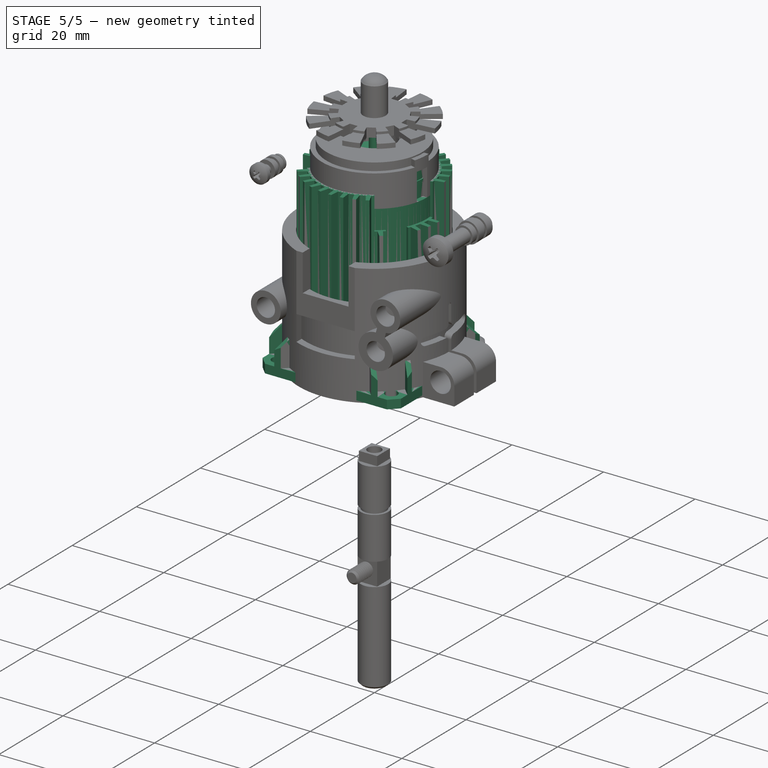
[diagram: stage 5 of 5 — iso view after this stage's code; geometry added in this stage tinted green]
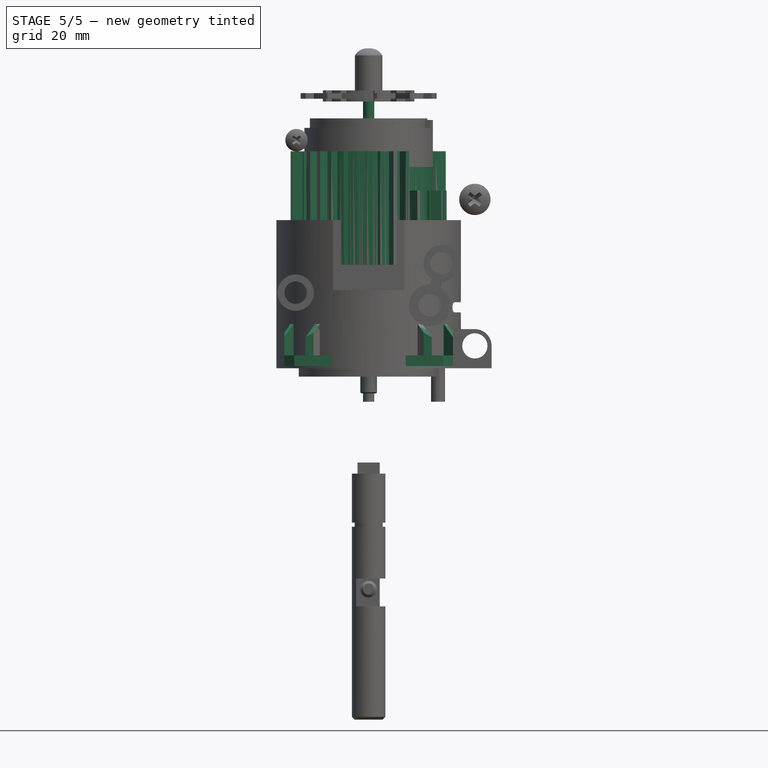
[diagram: stage 5 of 5 — front view after this stage's code; geometry added in this stage tinted green]
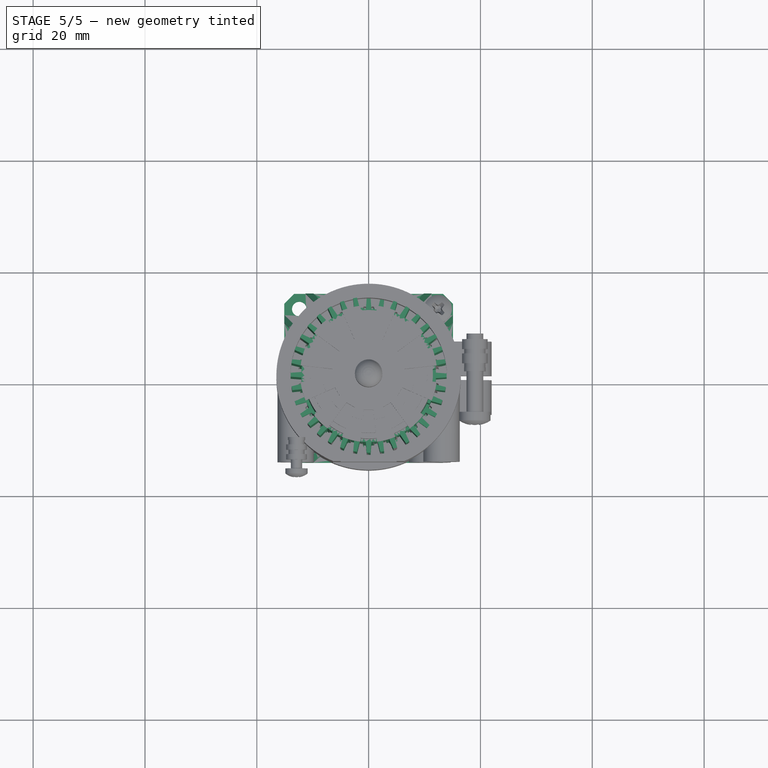
[diagram: stage 5 of 5 — top view after this stage's code; geometry added in this stage tinted green]
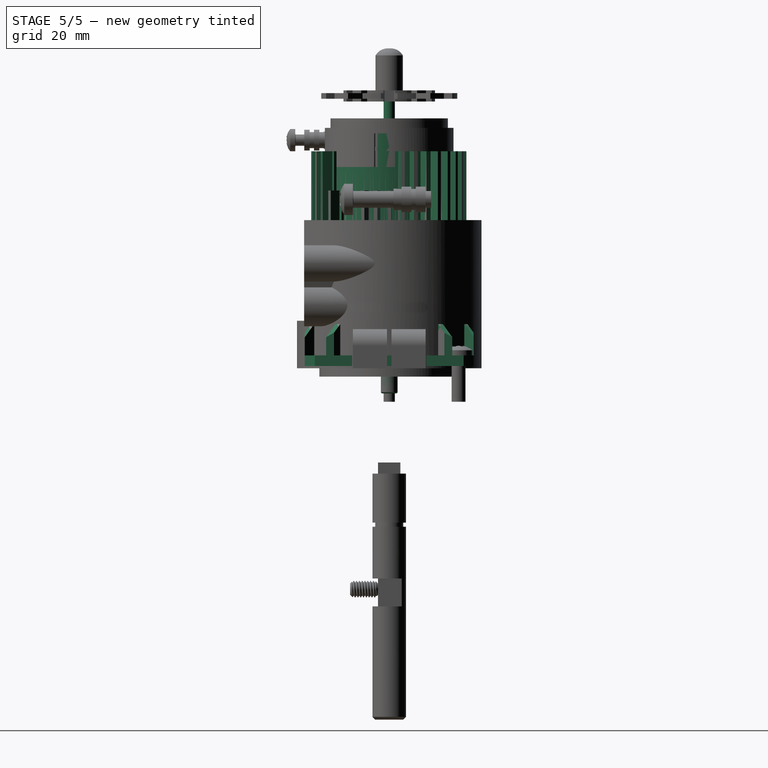
[diagram: stage 5 of 5 — right view after this stage's code; geometry added in this stage tinted green]
FEATURE [Sketcher::SketchObject] Sketch
  FullyConstrained = true
  MapMode = 5
  Placement = pos=(0,0,0) rot=(1,0,0;1.5708rad)
  Support = -> [XZ_Plane001]
  sketch-geometry (10):
    g0: LineSegment StartX=-11.5 StartY=0 StartZ=0 EndX=-11.5 EndY=36 EndZ=0
    g1: LineSegment StartX=-11.5 StartY=36 StartZ=0 EndX=-10.5 EndY=36 EndZ=0
    g2: LineSegment StartX=-10.5 StartY=36 StartZ=0 EndX=-10.5 EndY=38.85 EndZ=0
    g3: LineSegment StartX=-10.5 StartY=38.85 StartZ=0 EndX=-10.75 EndY=38.85 EndZ=0
    g4: LineSegment StartX=-10.75 StartY=38.85 StartZ=0 EndX=-10.75 EndY=39.6 EndZ=0
    g5: LineSegment StartX=-10.75 StartY=39.6 StartZ=0 EndX=-10.5 EndY=39.6 EndZ=0
    g6: LineSegment StartX=-10.5 StartY=39.6 StartZ=0 EndX=-10.5 EndY=42 EndZ=0
    g7: LineSegment StartX=-10.5 StartY=42 StartZ=0 EndX=0 EndY=42 EndZ=0
    g8: LineSegment StartX=0 StartY=42 StartZ=0 EndX=0 EndY=0 EndZ=0
    g9: LineSegment StartX=0 StartY=0 StartZ=0 EndX=-11.5 EndY=0 EndZ=0
  constraints (29):
    c: PointOnObject(g0,g-1)
    c: Vertical(g0)
    c: Coincident(g0,g1)
    c: Horizontal(g1)
    c: Coincident(g1,g2)
    c: Coincident(g2,g3)
    c: Coincident(g3,g4)
    c: Coincident(g4,g5)
    c: Horizontal(g5)
    c: Coincident(g5,g6)
    c: Vertical(g6)
    c: Coincident(g6,g7)
    c: Horizontal(g7)
    c: Coincident(g7,g8)
    c: Coincident(g8,g-1)
    c: Vertical(g8)
    c: Coincident(g8,g9)
    c: Coincident(g9,g0)
    c: DistanceX(g1,g1) = 1
    c: DistanceY(g2,g2) = 2.85
    c: Horizontal(g3)
    c: Vertical(g4)
    c: Vertical(g2)
    c: Vertical(g5,g2)
    c: DistanceX(g3,g3) = 0.25
    c: DistanceY(g4,g4) = 0.75
    c: DistanceY(g8,g8) = 42
    c: DistanceX(g9,g9) = 11.5
    c: DistanceY(g1,g6) = 6
FEATURE [PartDesign::Revolution] Revolution
  Angle = 360
  Axis = (0,2e-16,1)
  Base = (0,0,0)
  Placement = pos=(0,0,0) rot=(1,0,0;1.5708rad)
  Profile = -> Sketch
  ReferenceAxis = -> Sketch [V_Axis]
FEATURE [Sketcher::SketchObject] Sketch002
  FullyConstrained = true
  MapMode = 5
  Placement = pos=(0,0,0) rot=(1,0,0;1.5708rad)
  Support = -> [XZ_Plane004]
  sketch-geometry (4):
    g0: LineSegment StartX=0 StartY=-4.5 StartZ=0 EndX=-1.5 EndY=-4.5 EndZ=0
    g1: LineSegment StartX=-1.5 StartY=-4.5 StartZ=0 EndX=-1.5 EndY=5.5 EndZ=0
    g2: LineSegment StartX=-1.5 StartY=5.5 StartZ=0 EndX=0 EndY=5.5 EndZ=0
    g3: LineSegment StartX=0 StartY=5.5 StartZ=0 EndX=0 EndY=-4.5 EndZ=0
  constraints (12):
    c: Coincident(g0,g1)
    c: Coincident(g1,g2)
    c: Coincident(g2,g3)
    c: Coincident(g3,g0)
    c: Horizontal(g0)
    c: Horizontal(g2)
    c: Vertical(g1)
    c: Vertical(g3)
    c: PointOnObject(g0,g-2)
    c: DistanceX(g0,g0) = 1.5
    c: DistanceY(g1,g1) = 10
    c: DistanceY(g0) = -4.5
FEATURE [PartDesign::ShapeBinder] ShapeBinder001
  Placement = pos=(0,0,0) rot=(1,0,0;1.5708rad)
  Support = -> [Sketch001]
  TraceSupport = false
FEATURE [PartDesign::ShapeBinder] ShapeBinder002
  Placement = pos=(0,0,0) rot=(1,0,0;1.5708rad)
  Support = -> [Sketch]
  TraceSupport = false
FEATURE [PartDesign::Revolution] Revolution002
  Angle = 360
  Axis = (0,2e-16,1)
  Base = (0,0,0)
  Placement = pos=(0,0,0) rot=(1,0,0;1.5708rad)
  Profile = -> Sketch002
  ReferenceAxis = -> Sketch002 [V_Axis]
FEATURE [Sketcher::SketchObject] Sketch003
  ExternalGeometry = -> [ShapeBinder001]
  FullyConstrained = true
  MapMode = 5
  Placement = pos=(0,0,0) rot=(1,0,0;1.5708rad)
  Support = -> [XZ_Plane003]
  sketch-geometry (4):
    g0: LineSegment StartX=0 StartY=53.7 StartZ=0 EndX=-1 EndY=53.7 EndZ=0
    g1: LineSegment StartX=-1 StartY=53.7 StartZ=0 EndX=-1 EndY=33.7 EndZ=0
    g2: LineSegment StartX=-1 StartY=33.7 StartZ=0 EndX=0 EndY=33.7 EndZ=0
    g3: LineSegment StartX=0 StartY=33.7 StartZ=0 EndX=0 EndY=53.7 EndZ=0
  constraints (12):
    c: Coincident(g0,g1)
    c: Coincident(g1,g2)
    c: Coincident(g2,g3)
    c: Coincident(g3,g0)
    c: Horizontal(g0)
    c: Horizontal(g2)
    c: Vertical(g1)
    c: Vertical(g3)
    c: PointOnObject(g0,g-2)
    c: DistanceX(g0,g0) = 1
    c: DistanceY(g1,g1) = 20
    c: DistanceY(g-3,g0) = 9
FEATURE [PartDesign::Revolution] Revolution003
  Angle = 360
  Axis = (0,2e-16,1)
  Base = (0,0,0)
  Placement = pos=(0,0,0) rot=(1,0,0;1.5708rad)
  Profile = -> Sketch003
  ReferenceAxis = -> Sketch003 [V_Axis]
FEATURE [PartDesign::Chamfer] Chamfer
  Angle = 45
  Base = -> Revolution003 [Edge1]
  BaseFeature = -> Revolution003
  ChamferType = 0
  FlipDirection = false
  Placement = pos=(0,0,0) rot=(1,0,0;1.5708rad)
  Size = 0.1
  Size2 = 1
  SupportTransform = false
  UseAllEdges = false
FEATURE [PartDesign::Body] Body002  label="Thin shaft"
  Group = -> [ShapeBinder001,Sketch003,Revolution003,Chamfer]
  Origin = -> Origin003
  Tip = -> Chamfer
FEATURE [PartDesign::Chamfer] Chamfer001
  Angle = 45
  Base = -> Revolution002 [Edge1]
  BaseFeature = -> Revolution002
  ChamferType = 0
  FlipDirection = false
  Placement = pos=(0,0,0) rot=(1,0,0;1.5708rad)
  Size = 0.2
  Size2 = 1
  SupportTransform = false
  UseAllEdges = false
FEATURE [PartDesign::Body] Body003  label="Thick shaft"
  Group = -> [Sketch002,ShapeBinder002,Revolution002,Chamfer001]
  Origin = -> Origin004
  Tip = -> Chamfer001
FEATURE [PartDesign::FeaturePython] involutegear  # WARN: FeaturePython — macro-defined, semantics opaque (R4)
  AttacherType = Attacher::AttachEngine3D
  backlash = 0
  beta = 0
  clearance = 0.25
  da = 9
  df = 6.975
  double_helix = false
  dw = 8.1
  head = 0
  height = 3
  module = 0.45
  numpoints = 6
  pressure_angle = 20
  properties_from_tool = false
  reversed_backlash = false
  shift = 0
  simple = false
  teeth = 18
  transverse_pitch = 1.41372
  undercut = false
  version = 0.0.3
FEATURE [Sketcher::SketchObject] Sketch004
  FullyConstrained = true
  MapMode = 5
  Placement = pos=(0,0,0) rot=(1,0,0;3.14159rad)
  Support = -> [involutegear]
  sketch-geometry (1):
    g0: Circle CenterX=0 CenterY=0 CenterZ=0 NormalX=0 NormalY=0 NormalZ=1 AngleXU=0 Radius=1.5
  constraints (2):
    c: Coincident(g0,g-1)
    c: Diameter(g0) = 3
FEATURE [PartDesign::Pocket] Pocket
  BaseFeature = -> involutegear
  Direction = (0,0,1)
  Length = 5
  Length2 = 5
  Profile = -> Sketch004
  ReferenceAxis = -> Sketch004 [N_Axis]
  Type = 0
FEATURE [Sketcher::SketchObject] Sketch006
  ExternalGeometry = -> [Pad]
  FullyConstrained = true
  MapMode = 5
  Placement = pos=(0,0,-1.5) rot=(1,0,0;3.14159rad)
  Support = -> [Pad]
  sketch-geometry (4):
    g0: ArcOfCircle CenterX=0 CenterY=11.35 CenterZ=0 NormalX=0 NormalY=0 NormalZ=1 AngleXU=0 Radius=3.85003 StartAngle=3.13754 EndAngle=6.28724
    g1: ArcOfCircle CenterX=0 CenterY=0 CenterZ=0 NormalX=0 NormalY=0 NormalZ=1 AngleXU=0 Radius=12 StartAngle=1.24419 EndAngle=1.89741
    g2: GeomPoint X=0 Y=7.5 Z=0
    g3: GeomPoint X=0 Y=12 Z=0
  constraints (11):
    c: PointOnObject(g0,g-2)
    c: Coincident(g1,g-3)
    c: Coincident(g0,g1)
    c: Coincident(g0,g1)
    c: Radius(g1) = 12
    c: DistanceX(g0,g0) = 7.7
    c: PointOnObject(g2,g0)
    c: PointOnObject(g3,g1)
    c: PointOnObject(g3,g-2)
    c: PointOnObject(g2,g-2)
    c: DistanceY(g2,g3) = 4.5
FEATURE [PartDesign::Pocket] Pocket001
  BaseFeature = -> Pad
  Direction = (0,0,1)
  Length = 5
  Length2 = 5
  Profile = -> Sketch006
  ReferenceAxis = -> Sketch006 [N_Axis]
  Type = 2
FEATURE [PartDesign::PolarPattern] PolarPattern
  Angle = 360
  Axis = -> Sketch006 [N_Axis]
  BaseFeature = -> Pocket001
  Occurrences = 3
  Originals = -> [Pocket001]
FEATURE [Sketcher::SketchObject] Sketch007
  FullyConstrained = true
  MapMode = 5
  Placement = pos=(0,0,0.4) rot=(0,0,1;0rad)
  Support = -> [PolarPattern]
  sketch-geometry (15):
    g0: Circle CenterX=0 CenterY=0 CenterZ=0 NormalX=0 NormalY=0 NormalZ=1 AngleXU=0 Radius=12
    g1: LineSegment StartX=-15.1 StartY=-15.1 StartZ=0 EndX=-15.1 EndY=15.1 EndZ=0
    g2: LineSegment StartX=-15.1 StartY=15.1 StartZ=0 EndX=15.1 EndY=15.1 EndZ=0
    g3: LineSegment StartX=15.1 StartY=15.1 StartZ=0 EndX=15.1 EndY=-15.1 EndZ=0
    g4: LineSegment StartX=15.1 StartY=-15.1 StartZ=0 EndX=-15.1 EndY=-15.1 EndZ=0
    g5: GeomPoint X=0 Y=0 Z=0
    g6: LineSegment StartX=-12.4 StartY=-12.4 StartZ=0 EndX=-12.4 EndY=12.4 EndZ=0
    g7: LineSegment StartX=-12.4 StartY=12.4 StartZ=0 EndX=12.4 EndY=12.4 EndZ=0
    g8: LineSegment StartX=12.4 StartY=12.4 StartZ=0 EndX=12.4 EndY=-12.4 EndZ=0
    g9: LineSegment StartX=12.4 StartY=-12.4 StartZ=0 EndX=-12.4 EndY=-12.4 EndZ=0
    g10: GeomPoint X=0 Y=0 Z=0
    g11: Circle CenterX=-12.4 CenterY=12.4 CenterZ=0 NormalX=0 NormalY=0 NormalZ=1 AngleXU=0 Radius=1.3
    g12: Circle CenterX=12.4 CenterY=12.4 CenterZ=0 NormalX=0 NormalY=0 NormalZ=1 AngleXU=0 Radius=1.3
    g13: Circle CenterX=12.4 CenterY=-12.4 CenterZ=0 NormalX=0 NormalY=0 NormalZ=1 AngleXU=0 Radius=1.3
    g14: Circle CenterX=-12.4 CenterY=-12.4 CenterZ=0 NormalX=0 NormalY=0 NormalZ=1 AngleXU=0 Radius=1.3
  constraints (34):
    c: Coincident(g0,g-1)
    c: Radius(g0) = 12
    c: Coincident(g1,g2)
    c: Coincident(g2,g3)
    c: Coincident(g3,g4)
    c: Coincident(g4,g1)
    c: Horizontal(g2)
    c: Horizontal(g4)
    c: Vertical(g1)
    c: Vertical(g3)
    c: Symmetric(g2,g1,g5)
    c: Coincident(g5,g0)
    c: Equal(g2,g3)
    c: Coincident(g6,g7)
    c: Coincident(g7,g8)
    c: Coincident(g8,g9)
    c: Coincident(g9,g6)
    c: Horizontal(g7)
    c: Horizontal(g9)
    c: Vertical(g6)
    c: Vertical(g8)
    c: Symmetric(g7,g6,g10)
    c: Coincident(g10,g0)
    c: Equal(g8,g7)
    c: DistanceX(g2,g2) = 30.2
    c: DistanceX(g7,g2) = 2.7
    c: Coincident(g11,g6)
    c: Coincident(g12,g7)
    c: Coincident(g13,g8)
    c: Coincident(g14,g6)
    c: Equal(g14,g11)
    c: Equal(g11,g12)
    c: Equal(g12,g13)
    c: Diameter(g11) = 2.6
FEATURE [PartDesign::Pad] Pad001
  BaseFeature = -> PolarPattern
  Direction = (0,0,1)
  Length = 1.9
  Length2 = 10
  Profile = -> Sketch007
  ReferenceAxis = -> Sketch007 [N_Axis]
  Type = 0
FEATURE [PartDesign::Chamfer] Chamfer002
  Angle = 45
  Base = -> Pad001 [Edge38,Edge34,Edge33,Edge36]
  BaseFeature = -> Pad001
  ChamferType = 0
  FlipDirection = false
  Size = 1.8
  Size2 = 1
  SupportTransform = false
  UseAllEdges = false
FEATURE [Sketcher::SketchObject] Sketch008
  FullyConstrained = true
  MapMode = 5
  Placement = pos=(0,0,2.3) rot=(0,0,1;0rad)
  Support = -> [Chamfer002]
  sketch-geometry (2):
    g0: Circle CenterX=0 CenterY=0 CenterZ=0 NormalX=0 NormalY=0 NormalZ=1 AngleXU=0 Radius=11.5
    g1: Circle CenterX=0 CenterY=0 CenterZ=0 NormalX=0 NormalY=0 NormalZ=1 AngleXU=0 Radius=12.05
  constraints (4):
    c: Coincident(g0,g-1)
    c: Coincident(g1,g0)
    c: Diameter(g0) = 23
    c: Diameter(g1) = 24.1
FEATURE [PartDesign::Pad] Pad002
  BaseFeature = -> Chamfer002
  Direction = (0,0,1)
  Length = 36.5
  Length2 = 10
  Profile = -> Sketch008
  ReferenceAxis = -> Sketch008 [N_Axis]
  Type = 0
FEATURE [Sketcher::SketchObject] Sketch009
  ExternalGeometry = -> [Pad002]
  FullyConstrained = true
  MapMode = 5
  Placement = pos=(0,0,2.3) rot=(0,0,1;0rad)
  Support = -> [Pad002]
  sketch-geometry (7):
    g0: GeomPoint X=0 Y=12.05 Z=0
    g1: LineSegment StartX=-0.5 StartY=11.95 StartZ=0 EndX=0.5 EndY=11.95 EndZ=0
    g2: LineSegment StartX=0.5 StartY=11.95 StartZ=0 EndX=0.35 EndY=13.95 EndZ=0
    g3: LineSegment StartX=0.35 StartY=13.95 StartZ=0 EndX=-0.35 EndY=13.95 EndZ=0
    g4: LineSegment StartX=-0.35 StartY=13.95 StartZ=0 EndX=-0.5 EndY=11.95 EndZ=0
    g5: GeomPoint X=0 Y=11.95 Z=0
    g6: GeomPoint X=0 Y=13.95 Z=0
  constraints (16):
    c: PointOnObject(g0,g-3)
    c: PointOnObject(g0,g-2)
    c: Horizontal(g1)
    c: Coincident(g1,g2)
    c: Coincident(g2,g3)
    c: Horizontal(g3)
    c: Coincident(g3,g4)
    c: Coincident(g1,g4)
    c: Symmetric(g1,g1,g5)
    c: Vertical(g5,g0)
    c: PointOnObject(g6,g-2)
    c: Symmetric(g2,g3,g6)
    c: DistanceX(g3,g3) = 0.7
    c: DistanceX(g1,g1) = 1
    c: DistanceY(g1,g2) = 2
    c: DistanceY(g1,g0) = 0.1
FEATURE [PartDesign::Pad] Pad003
  BaseFeature = -> Pad002
  Direction = (0,0,1)
  Length = 36.5
  Length2 = 10
  Profile = -> Sketch009
  ReferenceAxis = -> Sketch009 [N_Axis]
  Type = 0
FEATURE [PartDesign::PolarPattern] PolarPattern001
  Angle = 360
  Axis = -> Sketch009 [N_Axis]
  BaseFeature = -> Pad003
  Occurrences = 36
  Originals = -> [Pad003]
FEATURE [Sketcher::SketchObject] Sketch010
  FullyConstrained = true
  MapMode = 5
  Placement = pos=(0,0,38.8) rot=(0,0,1;0rad)
  Support = -> [PolarPattern001]
  sketch-geometry (6):
    g0: ArcOfCircle CenterX=0 CenterY=0 CenterZ=0 NormalX=0 NormalY=0 NormalZ=1 AngleXU=0 Radius=11 StartAngle=5.49779 EndAngle=5.84685
    g1: ArcOfCircle CenterX=0 CenterY=0 CenterZ=0 NormalX=0 NormalY=0 NormalZ=1 AngleXU=0 Radius=15 StartAngle=5.49779 EndAngle=5.84685
    g2: LineSegment StartX=10.6066 StartY=-10.6066 StartZ=0 EndX=7.77817 EndY=-7.77817 EndZ=0
    g3: LineSegment StartX=9.96939 StartY=-4.6488 StartZ=0 EndX=13.5946 EndY=-6.33927 EndZ=0
    g4: LineSegment StartX=0 StartY=0 StartZ=0 EndX=10.6066 EndY=-10.6066 EndZ=0
    g5: LineSegment StartX=13.5946 StartY=-6.33927 StartZ=0 EndX=0 EndY=0 EndZ=0
  constraints (16):
    c: Coincident(g0,g-1)
    c: Coincident(g1,g0)
    c: Coincident(g2,g1)
    c: Coincident(g2,g0)
    c: Coincident(g3,g0)
    c: Coincident(g3,g1)
    c: Coincident(g4,g0)
    c: Coincident(g4,g1)
    c: Coincident(g5,g1)
    c: Coincident(g5,g0)
    c: Parallel(g4,g2)
    c: Parallel(g3,g5)
    c: Angle(g4,g5) = 0.349066
    c: Angle(g5,g-1) = 0.436332
    c: Radius(g0) = 11
    c: Radius(g1) = 15
FEATURE [PartDesign::Pocket] Pocket002
  BaseFeature = -> PolarPattern001
  Direction = (0,0,-1)
  Length = 18
  Length2 = 5
  Profile = -> Sketch010
  ReferenceAxis = -> Sketch010 [N_Axis]
  Type = 0
FEATURE [PartDesign::PolarPattern] PolarPattern002
  Angle = 360
  Axis = -> Sketch010 [N_Axis]
  BaseFeature = -> Pocket002
  Occurrences = 3
  Originals = -> [Pocket002]
FEATURE [Sketcher::SketchObject] Sketch011
  FullyConstrained = true
  MapMode = 5
  Placement = pos=(0,0,38.8) rot=(0,0,1;0rad)
  Support = -> [PolarPattern002]
  sketch-geometry (6):
    g0: LineSegment StartX=0 StartY=0 StartZ=0 EndX=8.60365 EndY=-12.2873 EndZ=0
    g1: LineSegment StartX=0 StartY=0 StartZ=0 EndX=14.9429 EndY=1.30734 EndZ=0
    g2: LineSegment StartX=14.9429 StartY=1.30734 StartZ=0 EndX=10.9581 EndY=0.958713 EndZ=0
    g3: LineSegment StartX=8.60365 StartY=-12.2873 StartZ=0 EndX=6.30934 EndY=-9.01067 EndZ=0
    g4: ArcOfCircle CenterX=0 CenterY=0 CenterZ=0 NormalX=0 NormalY=0 NormalZ=1 AngleXU=0 Radius=11 StartAngle=5.32325 EndAngle=6.37045
    g5: ArcOfCircle CenterX=0 CenterY=0 CenterZ=0 NormalX=0 NormalY=0 NormalZ=1 AngleXU=0 Radius=15 StartAngle=5.32325 EndAngle=6.37045
  constraints (16):
    c: Coincident(g0,g-1)
    c: Coincident(g1,g0)
    c: Coincident(g2,g1)
    c: PointOnObject(g2,g1)
    c: Coincident(g3,g0)
    c: PointOnObject(g3,g0)
    c: Coincident(g4,g0)
    c: Coincident(g4,g3)
    c: Coincident(g4,g2)
    c: Coincident(g5,g4)
    c: Coincident(g5,g2)
    c: Coincident(g5,g3)
    c: Radius(g4) = 11
    c: Radius(g5) = 15
    c: Angle(g0,g1) = 1.0472
    c: Angle(g-1,g1) = 0.0872665
FEATURE [PartDesign::Pocket] Pocket003
  BaseFeature = -> PolarPattern002
  Direction = (0,0,-1)
  Length = 7
  Length2 = 5
  Profile = -> Sketch011
  ReferenceAxis = -> Sketch011 [N_Axis]
  Type = 0
FEATURE [Sketcher::SketchObject] Sketch012
  ExternalGeometry = -> [Pocket003]
  FullyConstrained = true
  MapMode = 5
  Placement = pos=(0,0,2.3) rot=(0,0,1;0rad)
  Support = -> [Pocket003]
  sketch-geometry (10):
    g0: LineSegment StartX=11.2816 StartY=-15.1 StartZ=0 EndX=9.86741 EndY=-15.1 EndZ=0
    g1: LineSegment StartX=9.86741 StartY=-15.1 StartZ=0 EndX=5.34193 EndY=-10.5745 EndZ=0
    g2: LineSegment StartX=5.34193 StartY=-10.5745 StartZ=0 EndX=6.04903 EndY=-9.86741 EndZ=0
    g3: LineSegment StartX=6.04903 StartY=-9.86741 StartZ=0 EndX=11.2816 EndY=-15.1 EndZ=0
    g4: LineSegment StartX=15.1 StartY=-11.2816 StartZ=0 EndX=15.1 EndY=-9.86741 EndZ=0
    g5: LineSegment StartX=15.1 StartY=-9.86741 StartZ=0 EndX=10.5745 EndY=-5.34193 EndZ=0
    g6: LineSegment StartX=10.5745 StartY=-5.34193 StartZ=0 EndX=9.86741 EndY=-6.04903 EndZ=0
    g7: LineSegment StartX=9.86741 StartY=-6.04903 StartZ=0 EndX=15.1 EndY=-11.2816 EndZ=0
    g8: LineSegment StartX=11.2816 StartY=-15.1 StartZ=0 EndX=13.3 EndY=-15.1 EndZ=0
    g9: LineSegment StartX=15.1 StartY=-13.3 StartZ=0 EndX=15.1 EndY=-11.2816 EndZ=0
  constraints (28):
    c: PointOnObject(g0,g-3)
    c: PointOnObject(g0,g-3)
    c: Coincident(g0,g1)
    c: Coincident(g1,g2)
    c: Coincident(g2,g3)
    c: Coincident(g3,g0)
    c: Distance(g0,g3) = 1
    c: Parallel(g1,g3)
    c: Angle(g2) = 0.785398
    c: Angle(g1,g-3) = 0.785398
    c: PointOnObject(g4,g-4)
    c: PointOnObject(g4,g-4)
    c: Coincident(g4,g5)
    c: Coincident(g5,g6)
    c: Coincident(g6,g7)
    c: Coincident(g7,g4)
    c: Parallel(g7,g5)
    c: Parallel(g5,g3)
    c: Equal(g5,g1)
    c: Equal(g6,g2)
    c: Equal(g0,g4)
    c: Coincident(g8,g0)
    c: Coincident(g8,g-3)
    c: Coincident(g9,g-4)
    c: Coincident(g9,g4)
    c: Equal(g9,g8)
    c: Distance(g0,g4) = 5.4
    c: Distance(g5) = 6.4
FEATURE [PartDesign::Pad] Pad004
  BaseFeature = -> Pocket003
  Direction = (0,0,1)
  Length = 8
  Length2 = 10
  Profile = -> Sketch012
  ReferenceAxis = -> Sketch012 [N_Axis]
  Type = 0
FEATURE [PartDesign::PolarPattern] PolarPattern003
  Angle = 360
  Axis = -> Sketch012 [N_Axis]
  BaseFeature = -> Pad004
  Occurrences = 4
  Originals = -> [Pad004]
FEATURE [Sketcher::SketchObject] Sketch013
  ExternalGeometry = -> [PolarPattern003]
  FullyConstrained = true
  MapMode = 5
  Placement = pos=(0,0,0) rot=(1,0,0;1.5708rad)
  Support = -> [XZ_Plane005]
  sketch-geometry (3):
    g0: LineSegment StartX=-18.9 StartY=10.3 StartZ=0 EndX=-18.9 EndY=5.5 EndZ=0
    g1: LineSegment StartX=-18.9 StartY=5.5 StartZ=0 EndX=-14.1 EndY=10.3 EndZ=0
    g2: LineSegment StartX=-14.1 StartY=10.3 StartZ=0 EndX=-18.9 EndY=10.3 EndZ=0
  constraints (9):
    c: Vertical(g0)
    c: Coincident(g0,g1)
    c: Coincident(g1,g2)
    c: Coincident(g2,g0)
    c: Horizontal(g2)
    c: DistanceY(g0) = 5.5
    c: Equal(g0,g2)
    c: Horizontal(g0,g-3)
    c: DistanceX(g-3,g1) = 1
FEATURE [PartDesign::Groove] Groove
  Angle = 360
  Axis = (0,-2e-16,1)
  Base = (0,0,0)
  BaseFeature = -> PolarPattern003
  Profile = -> Sketch013
  ReferenceAxis = -> Sketch013 [V_Axis]
  Reversed = true
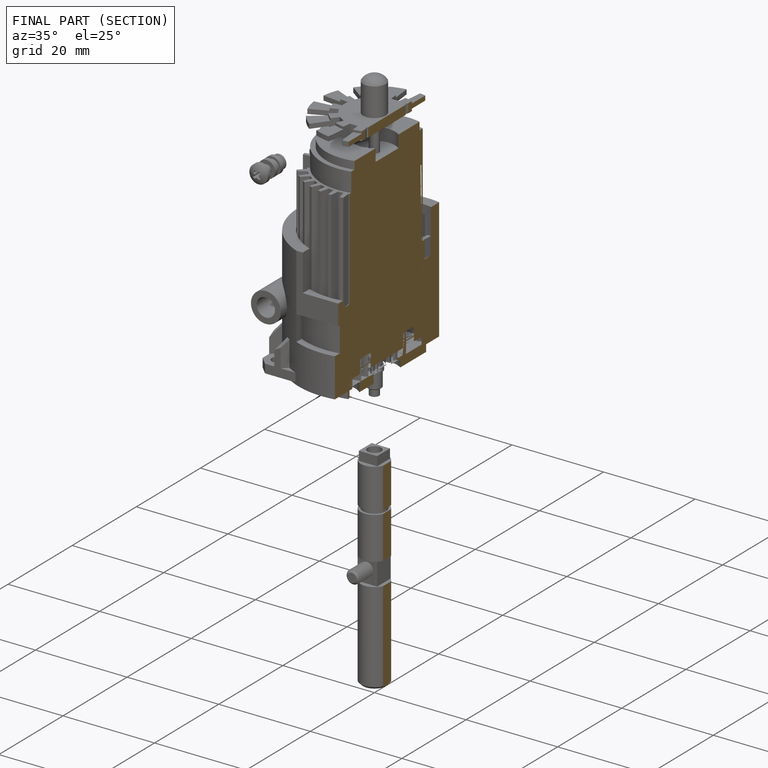
[diagram: finished part — half-section view (interior)]
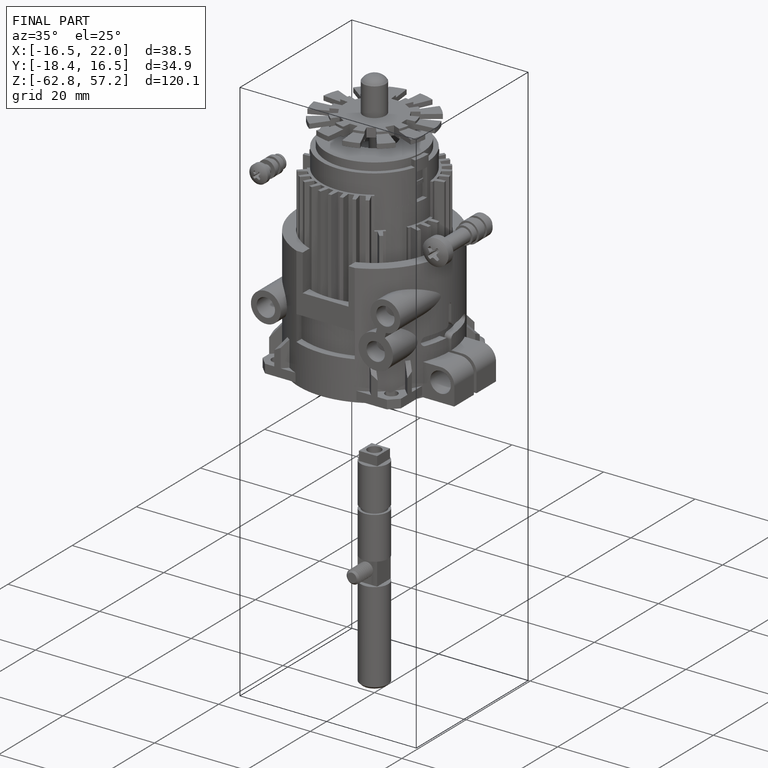
[diagram: finished part — iso view with bounding-box wireframe]
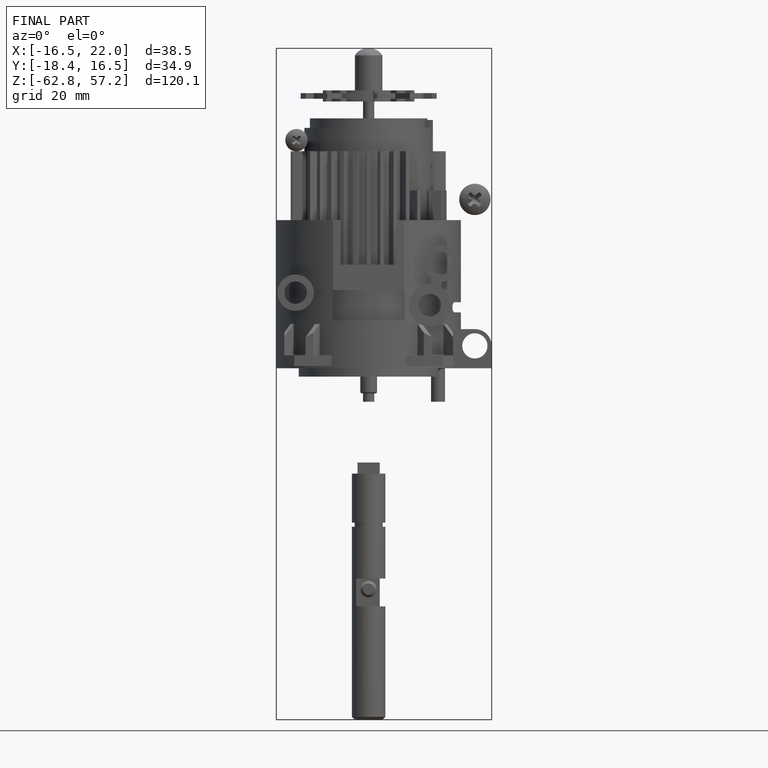
[diagram: finished part — front view with bounding-box wireframe]
